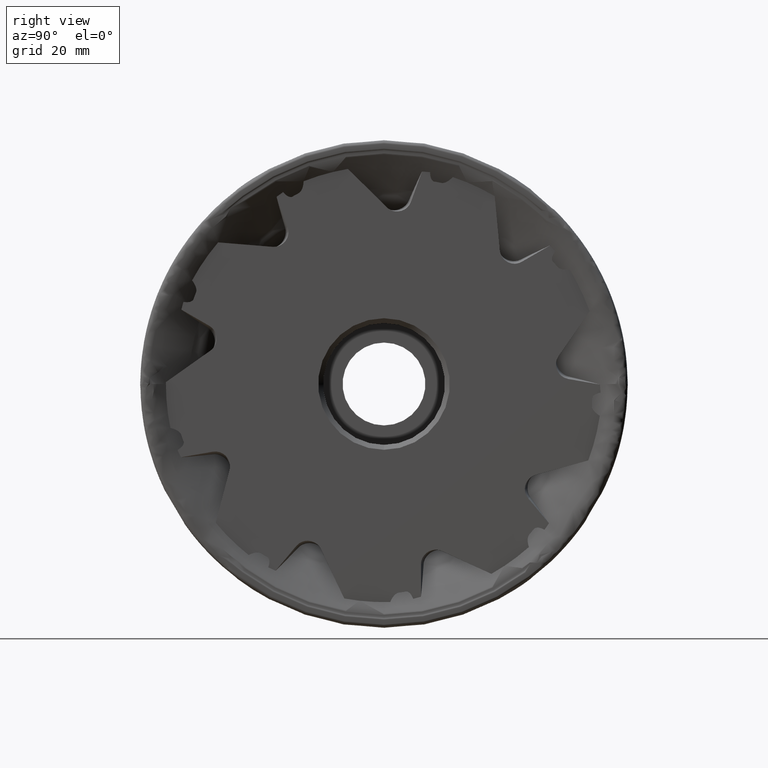
[diagram: clean part render]
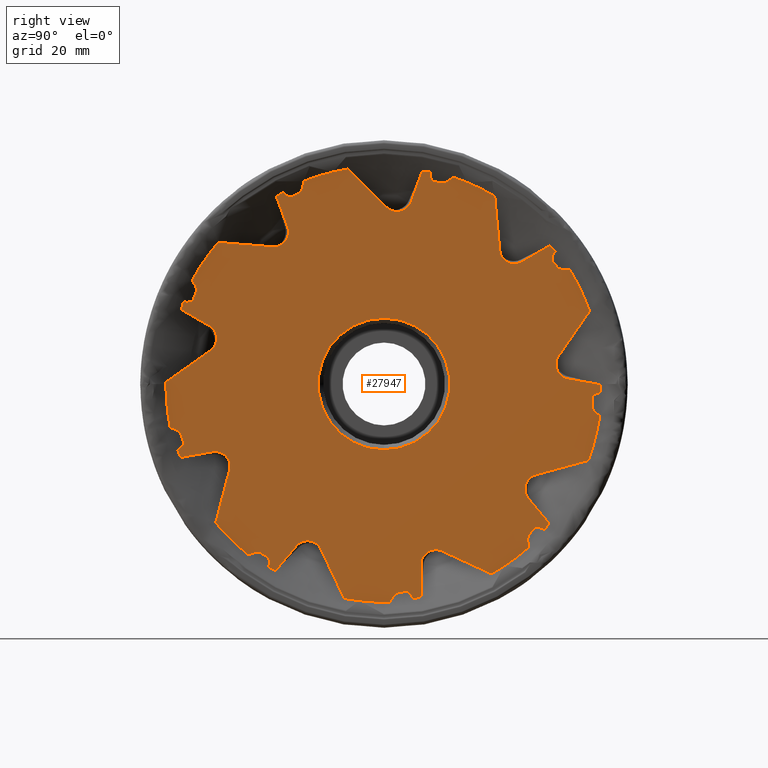
[diagram: same view with one face highlighted and labeled with its STEP entity id]
A machine part, right view. The second image highlights one B-rep face of the part: STEP entity #27947.
In plain terms, the highlighted planar face has unit normal (-1, 0, 0).
Its self-contained STEP definition (entity closure, byte-faithful):
#7 = ORIENTED_EDGE ( 'NONE', *, *, #22369, .F. ) ;
#101 = CARTESIAN_POINT ( 'NONE',  ( -0.5000000000000000000, 29.58925641689790700, -23.47173555906530900 ) ) ;
#102 = ORIENTED_EDGE ( 'NONE', *, *, #23277, .F. ) ;
#111 = CARTESIAN_POINT ( 'NONE',  ( -0.4999999999893449100, -39.36718985055523500, 21.26734490386622400 ) ) ;
#166 = ORIENTED_EDGE ( 'NONE', *, *, #27102, .F. ) ;
#174 = CARTESIAN_POINT ( 'NONE',  ( -0.5000000000000004400, -23.97150572284859700, -35.43166287729759700 ) ) ;
#319 = ORIENTED_EDGE ( 'NONE', *, *, #4123, .T. ) ;
#358 = VERTEX_POINT ( 'NONE', #27315 ) ;
#360 = CARTESIAN_POINT ( 'NONE',  ( -0.5000000000000000000, 43.16417240871292900, -2.120390557033617900 ) ) ;
#420 = EDGE_LOOP ( 'NONE', ( #22335, #16754, #20253, #19233, #12112, #2702, #9071, #11662, #24601, #19856, #27164, #20442, #23408, #3433, #19883, #10683, #24626, #23014, #25286, #8856, #6408, #17831, #11302, #1136, #20748, #677, #26560, #10052, #12272, #1690, #13908, #6385, #319, #7330, #9916, #13966, #4318, #26942, #166, #25768, #22955, #20591, #8021, #22971, #962, #15761, #12746, #11601, #27491, #25216, #4004, #6265, #6524, #20839, #22857, #26735, #6231, #18547, #12688, #21542, #13004, #102, #24852, #17792, #10626, #18775, #6638, #6462, #18810, #25735, #7, #14366, #4221, #3003, #3285, #16949, #3971, #15741, #28394, #3430, #8467, #27698, #27616, #13387, #26016, #23491, #19864, #15326, #23010, #25183, #23715, #25360, #13034, #4565, #3590, #3768, #11127, #14057, #20109, #2187, #19579, #23357, #16542, #16223 ) ) ;
#493 = CARTESIAN_POINT ( 'NONE',  ( -0.5000000000000004400, -39.45252706910576300, 17.00355092749155600 ) ) ;
#504 = LINE ( 'NONE', #19661, #3259 ) ;
#545 =( BOUNDED_CURVE ( )  B_SPLINE_CURVE ( 3, ( #12776, #23821, #17036, #8238 ),
 .UNSPECIFIED., .F., .F. ) 
 B_SPLINE_CURVE_WITH_KNOTS ( ( 4, 4 ),
 ( 3.012419020370851200, 3.332593767140632900 ),
 .UNSPECIFIED. ) 
 CURVE ( )  GEOMETRIC_REPRESENTATION_ITEM ( )  RATIONAL_B_SPLINE_CURVE ( ( 1.000000000000000000, 0.9914755729575720500, 0.9914755729575720500, 1.000000000000000000 ) ) 
 REPRESENTATION_ITEM ( '' )  );
#625 = VECTOR ( 'NONE', #23605, 1000.000000000000100 ) ;
#649 = LINE ( 'NONE', #11680, #19278 ) ;
#677 = ORIENTED_EDGE ( 'NONE', *, *, #20289, .F. ) ;
#714 = CARTESIAN_POINT ( 'NONE',  ( -0.5000000000000000000, 0.0000000000000000000, -13.50000000000001100 ) ) ;
#735 = VERTEX_POINT ( 'NONE', #17550 ) ;
#741 = CARTESIAN_POINT ( 'NONE',  ( -0.5000000000000000000, -26.66057323872512400, -34.50629014481866400 ) ) ;
#839 = CARTESIAN_POINT ( 'NONE',  ( -0.5000000000000000000, -25.16776837885325300, -34.72831584266487000 ) ) ;
#856 = CIRCLE ( 'NONE', #17886, 44.74455940097779200 ) ;
#864 = VERTEX_POINT ( 'NONE', #11340 ) ;
#905 = CARTESIAN_POINT ( 'NONE',  ( -0.5000000000000046600, 44.44113744580271000, -1.758973272405375000 ) ) ;
#937 = DIRECTION ( 'NONE',  ( 0.0000000000000000000, -0.6427876096865403600, 0.7660444431189770100 ) ) ;
#944 = EDGE_CURVE ( 'NONE', #8846, #13386, #13018, .T. ) ;
#962 = ORIENTED_EDGE ( 'NONE', *, *, #6803, .F. ) ;
#1066 = CARTESIAN_POINT ( 'NONE',  ( -0.5000000000000000000, -41.60256024127179600, -10.42590369276656000 ) ) ;
#1108 = EDGE_CURVE ( 'NONE', #9396, #14929, #12928, .T. ) ;
#1114 = DIRECTION ( 'NONE',  ( 0.0000000000000000000, -0.09355528973150852000, 0.9956140857597654000 ) ) ;
#1136 = ORIENTED_EDGE ( 'NONE', *, *, #17057, .F. ) ;
#1160 = VERTEX_POINT ( 'NONE', #23816 ) ;
#1225 = VECTOR ( 'NONE', #14175, 1000.000000000000000 ) ;
#1246 = VERTEX_POINT ( 'NONE', #8922 ) ;
#1257 = CARTESIAN_POINT ( 'NONE',  ( -0.4999999999999735800, 1.648735324820775400, 35.58195368176298200 ) ) ;
#1335 = CARTESIAN_POINT ( 'NONE',  ( -0.5000000000000000000, -19.77699954948752700, 32.17633842249912800 ) ) ;
#1365 =( BOUNDED_CURVE ( )  B_SPLINE_CURVE ( 3, ( #27463, #16532, #25170, #9477 ),
 .UNSPECIFIED., .F., .T. ) 
 B_SPLINE_CURVE_WITH_KNOTS ( ( 4, 4 ),
 ( 2.168404344971004900E-016, 1.570796326794894300 ),
 .UNSPECIFIED. ) 
 CURVE ( )  GEOMETRIC_REPRESENTATION_ITEM ( )  RATIONAL_B_SPLINE_CURVE ( ( 1.000000000000000000, 0.8047378541243654900, 0.8047378541243654900, 1.000000000000000000 ) ) 
 REPRESENTATION_ITEM ( '' )  );
#1376 = CARTESIAN_POINT ( 'NONE',  ( -0.4999999999999972800, -20.69725318442063900, 39.36664063734364300 ) ) ;
#1406 = CARTESIAN_POINT ( 'NONE',  ( -0.5000000000000003300, -23.64951165908783500, -35.68016236801374700 ) ) ;
#1449 = VERTEX_POINT ( 'NONE', #18246 ) ;
#1493 = CARTESIAN_POINT ( 'NONE',  ( -0.5000000000000000000, 13.25089763738516700, 41.54375930003711700 ) ) ;
#1508 = LINE ( 'NONE', #24162, #9079 ) ;
#1588 = CARTESIAN_POINT ( 'NONE',  ( -0.5000000000000004400, 4.818189292840928700, -42.53420318119886900 ) ) ;
#1608 = VERTEX_POINT ( 'NONE', #6239 ) ;
#1616 = CARTESIAN_POINT ( 'NONE',  ( -0.4999999999999995600, 11.06629524200903900, -34.00000000000000000 ) ) ;
#1629 = CARTESIAN_POINT ( 'NONE',  ( -0.4999999999999996100, -15.08370592729556800, -31.72711575691708300 ) ) ;
#1642 = CARTESIAN_POINT ( 'NONE',  ( -0.5000000000000004400, -8.149818227263651200, -43.99609140423914500 ) ) ;
#1670 = CARTESIAN_POINT ( 'NONE',  ( -0.5000000000000006700, 11.90566310921146400, -34.28107663889005600 ) ) ;
#1690 = ORIENTED_EDGE ( 'NONE', *, *, #2530, .F. ) ;
#1694 = CARTESIAN_POINT ( 'NONE',  ( -0.4999999999999996100, 35.01834119794753500, 2.800685362206364100 ) ) ;
#1695 = AXIS2_PLACEMENT_3D ( 'NONE', #4488, #1877, #8797 ) ;
#1794 = CARTESIAN_POINT ( 'NONE',  ( -0.5000000000000000000, 37.75402624939334100, 1.039214809239864500 ) ) ;
#1846 = CARTESIAN_POINT ( 'NONE',  ( -0.5000000000000008900, -41.13827264030037900, -11.73364159344168000 ) ) ;
#1847 = EDGE_CURVE ( 'NONE', #5583, #14179, #4241, .T. ) ;
#1849 = VECTOR ( 'NONE', #10010, 999.9999999999998900 ) ;
#1854 = CARTESIAN_POINT ( 'NONE',  ( -0.4999999999998443500, 1.745740669420998300E-015, 0.0000000000000000000 ) ) ;
#1877 = DIRECTION ( 'NONE',  ( -1.000000000000000000, 3.491481338843133000E-015, 0.0000000000000000000 ) ) ;
#1886 = CARTESIAN_POINT ( 'NONE',  ( -0.5000000000000002200, 31.15571837665129400, -18.60801553165424600 ) ) ;
#1938 = CARTESIAN_POINT ( 'NONE',  ( -0.4999999999999900100, -31.63924346709828200, -16.36313016547003900 ) ) ;
#1960 =( BOUNDED_CURVE ( )  B_SPLINE_CURVE ( 3, ( #11750, #20643, #13888, #16032 ),
 .UNSPECIFIED., .F., .F. ) 
 B_SPLINE_CURVE_WITH_KNOTS ( ( 4, 4 ),
 ( 2.365165096739790600, 2.969697752635072100 ),
 .UNSPECIFIED. ) 
 CURVE ( )  GEOMETRIC_REPRESENTATION_ITEM ( )  RATIONAL_B_SPLINE_CURVE ( ( 1.000000000000000000, 0.9697761937177743500, 0.9697761937177743500, 1.000000000000000000 ) ) 
 REPRESENTATION_ITEM ( '' )  );
#1975 =( BOUNDED_CURVE ( )  B_SPLINE_CURVE ( 3, ( #22469, #4702, #360, #16059 ),
 .UNSPECIFIED., .F., .T. ) 
 B_SPLINE_CURVE_WITH_KNOTS ( ( 4, 4 ),
 ( 2.365165096739790100, 2.969697752635067600 ),
 .UNSPECIFIED. ) 
 CURVE ( )  GEOMETRIC_REPRESENTATION_ITEM ( )  RATIONAL_B_SPLINE_CURVE ( ( 1.000000000000000000, 0.9697761937177746800, 0.9697761937177746800, 1.000000000000000000 ) ) 
 REPRESENTATION_ITEM ( '' )  );
#2130 =( BOUNDED_CURVE ( )  B_SPLINE_CURVE ( 3, ( #13305, #19762, #10686, #26080 ),
 .UNSPECIFIED., .F., .F. ) 
 B_SPLINE_CURVE_WITH_KNOTS ( ( 4, 4 ),
 ( 2.365165096739766200, 2.969697752635068500 ),
 .UNSPECIFIED. ) 
 CURVE ( )  GEOMETRIC_REPRESENTATION_ITEM ( )  RATIONAL_B_SPLINE_CURVE ( ( 1.000000000000000000, 0.9697761937177722400, 0.9697761937177722400, 1.000000000000000000 ) ) 
 REPRESENTATION_ITEM ( '' )  );
#2187 = ORIENTED_EDGE ( 'NONE', *, *, #2638, .T. ) ;
#2198 = CARTESIAN_POINT ( 'NONE',  ( -0.5000000000000006700, -22.91248251468065800, 28.14169814716137500 ) ) ;
#2205 = CARTESIAN_POINT ( 'NONE',  ( -0.4999999999999997800, 35.82766675841556000, 5.771942847899354400 ) ) ;
#2238 = EDGE_CURVE ( 'NONE', #21461, #26850, #3578, .T. ) ;
#2269 = LINE ( 'NONE', #25201, #17785 ) ;
#2270 = CIRCLE ( 'NONE', #23737, 44.74455940097779200 ) ;
#2289 = VERTEX_POINT ( 'NONE', #11144 ) ;
#2300 = LINE ( 'NONE', #2543, #18843 ) ;
#2332 = CARTESIAN_POINT ( 'NONE',  ( -0.5000000000000000000, 3.043302016619140900, -42.78096304754177500 ) ) ;
#2375 = VERTEX_POINT ( 'NONE', #24439 ) ;
#2446 = DIRECTION ( 'NONE',  ( 0.0000000000000000000, 0.2526068569124145200, 0.9675690031418073800 ) ) ;
#2454 = VERTEX_POINT ( 'NONE', #18241 ) ;
#2480 = VERTEX_POINT ( 'NONE', #19576 ) ;
#2482 = EDGE_CURVE ( 'NONE', #9409, #4960, #7568, .T. ) ;
#2530 = EDGE_CURVE ( 'NONE', #3491, #12830, #2130, .T. ) ;
#2543 = CARTESIAN_POINT ( 'NONE',  ( -0.5000000000000000000, -39.08401565306051100, -17.84663915461375100 ) ) ;
#2557 = VECTOR ( 'NONE', #5060, 1000.000000000000200 ) ;
#2569 = CARTESIAN_POINT ( 'NONE',  ( -0.5000000000000001100, 42.64494276628744300, -5.096686051221202400 ) ) ;
#2573 = EDGE_CURVE ( 'NONE', #22103, #18950, #1508, .T. ) ;
#2580 = VERTEX_POINT ( 'NONE', #101 ) ;
#2605 = LINE ( 'NONE', #10923, #7045 ) ;
#2637 = CARTESIAN_POINT ( 'NONE',  ( -0.5000000000000000000, 35.52774978922484200, 24.02605838155163900 ) ) ;
#2638 = EDGE_CURVE ( 'NONE', #11156, #7890, #8720, .T. ) ;
#2702 = ORIENTED_EDGE ( 'NONE', *, *, #1847, .F. ) ;
#2755 = CARTESIAN_POINT ( 'NONE',  ( -0.5000000000000000000, -21.19390527863771500, -16.39771588095142000 ) ) ;
#2777 = CARTESIAN_POINT ( 'NONE',  ( -0.4999999999999995600, 24.69463342276219500, 25.22764023748726800 ) ) ;
#2802 = EDGE_CURVE ( 'NONE', #13386, #8846, #3545, .T. ) ;
#2923 = CARTESIAN_POINT ( 'NONE',  ( -0.5000000000000003300, 34.45177059230314100, 25.66511522159289900 ) ) ;
#2928 = VERTEX_POINT ( 'NONE', #5196 ) ;
#2932 = VECTOR ( 'NONE', #4880, 1000.000000000000100 ) ;
#2939 = LINE ( 'NONE', #27574, #25664 ) ;
#3003 = ORIENTED_EDGE ( 'NONE', *, *, #21830, .F. ) ;
#3013 = EDGE_CURVE ( 'NONE', #5583, #21831, #6967, .T. ) ;
#3015 = VECTOR ( 'NONE', #20500, 1000.000000000000200 ) ;
#3047 = DIRECTION ( 'NONE',  ( 0.0000000000000000000, 0.4284332877048025500, -0.9035734159361119600 ) ) ;
#3061 = VERTEX_POINT ( 'NONE', #16585 ) ;
#3095 = CARTESIAN_POINT ( 'NONE',  ( -0.5000000000000000000, 37.80624952067264400, 24.62065041062805200 ) ) ;
#3121 = AXIS2_PLACEMENT_3D ( 'NONE', #13830, #14197, #20760 ) ;
#3132 = EDGE_CURVE ( 'NONE', #13396, #28227, #6322, .T. ) ;
#3161 = CARTESIAN_POINT ( 'NONE',  ( -0.5000000000000003300, 42.72468285139730400, -2.640996699859845500 ) ) ;
#3236 = AXIS2_PLACEMENT_3D ( 'NONE', #24283, #7011, #24650 ) ;
#3259 = VECTOR ( 'NONE', #6425, 1000.000000000000200 ) ;
#3277 = VERTEX_POINT ( 'NONE', #21269 ) ;
#3285 = ORIENTED_EDGE ( 'NONE', *, *, #3897, .T. ) ;
#3312 = VERTEX_POINT ( 'NONE', #8162 ) ;
#3426 = LINE ( 'NONE', #26390, #8587 ) ;
#3430 = ORIENTED_EDGE ( 'NONE', *, *, #25230, .F. ) ;
#3433 = ORIENTED_EDGE ( 'NONE', *, *, #28054, .F. ) ;
#3437 = CARTESIAN_POINT ( 'NONE',  ( -0.4999999999996896900, 44.26691815580011300, -6.520395154844322900 ) ) ;
#3450 = CIRCLE ( 'NONE', #1695, 44.74455940097779200 ) ;
#3491 = VERTEX_POINT ( 'NONE', #13486 ) ;
#3500 = CARTESIAN_POINT ( 'NONE',  ( -0.5000000000000000000, -38.57105180584425600, 18.75490466598994400 ) ) ;
#3545 = CIRCLE ( 'NONE', #3236, 13.50000000000001100 ) ;
#3554 = VECTOR ( 'NONE', #14435, 1000.000000000000100 ) ;
#3578 = LINE ( 'NONE', #19656, #13236 ) ;
#3590 = ORIENTED_EDGE ( 'NONE', *, *, #26530, .F. ) ;
#3604 = CARTESIAN_POINT ( 'NONE',  ( -0.5000000000000004400, 5.000756476802365600, -42.66866614908465000 ) ) ;
#3636 = EDGE_CURVE ( 'NONE', #3491, #8876, #7306, .T. ) ;
#3637 = CARTESIAN_POINT ( 'NONE',  ( -0.4999999999999980600, -27.78028692470631400, -35.07607809274878000 ) ) ;
#3665 =( BOUNDED_CURVE ( )  B_SPLINE_CURVE ( 3, ( #839, #22860, #741, #22580 ),
 .UNSPECIFIED., .F., .F. ) 
 B_SPLINE_CURVE_WITH_KNOTS ( ( 4, 4 ),
 ( 3.253571808752294000, 4.092388881214473500 ),
 .UNSPECIFIED. ) 
 CURVE ( )  GEOMETRIC_REPRESENTATION_ITEM ( )  RATIONAL_B_SPLINE_CURVE ( ( 1.000000000000000000, 0.9422199707466379900, 0.9422199707466379900, 1.000000000000000000 ) ) 
 REPRESENTATION_ITEM ( '' )  );
#3709 = VECTOR ( 'NONE', #26311, 1000.000000000000100 ) ;
#3718 = VECTOR ( 'NONE', #19438, 1000.000000000000200 ) ;
#3754 = CARTESIAN_POINT ( 'NONE',  ( -0.5000000000000000000, 29.35250210384537100, -32.24749362694276300 ) ) ;
#3767 = VECTOR ( 'NONE', #5638, 1000.000000000000200 ) ;
#3768 = ORIENTED_EDGE ( 'NONE', *, *, #11730, .F. ) ;
#3770 =( BOUNDED_CURVE ( )  B_SPLINE_CURVE ( 3, ( #3500, #25547, #23128, #9850 ),
 .UNSPECIFIED., .F., .F. ) 
 B_SPLINE_CURVE_WITH_KNOTS ( ( 4, 4 ),
 ( 3.253571808752292700, 4.092388881220347900 ),
 .UNSPECIFIED. ) 
 CURVE ( )  GEOMETRIC_REPRESENTATION_ITEM ( )  RATIONAL_B_SPLINE_CURVE ( ( 1.000000000000000000, 0.9422199707458404100, 0.9422199707458404100, 1.000000000000000000 ) ) 
 REPRESENTATION_ITEM ( '' )  );
#3817 = CARTESIAN_POINT ( 'NONE',  ( -0.4999999999999995600, 10.62044047968053600, -34.00000000000000000 ) ) ;
#3818 = VERTEX_POINT ( 'NONE', #5021 ) ;
#3826 = CARTESIAN_POINT ( 'NONE',  ( -0.4999999999999995600, -19.59837760108303700, 31.16250108552832600 ) ) ;
#3856 =( BOUNDED_CURVE ( )  B_SPLINE_CURVE ( 3, ( #15176, #25829, #17018, #12568 ),
 .UNSPECIFIED., .F., .F. ) 
 B_SPLINE_CURVE_WITH_KNOTS ( ( 4, 4 ),
 ( 0.0000000000000000000, 0.5177274942527081400 ),
 .UNSPECIFIED. ) 
 CURVE ( )  GEOMETRIC_REPRESENTATION_ITEM ( )  RATIONAL_B_SPLINE_CURVE ( ( 1.000000000000000000, 0.9777876418324865600, 0.9777876418324865600, 1.000000000000000000 ) ) 
 REPRESENTATION_ITEM ( '' )  );
#3859 = CARTESIAN_POINT ( 'NONE',  ( -0.4999999999999995600, -22.02760085142706000, 28.16465322196462000 ) ) ;
#3895 = VERTEX_POINT ( 'NONE', #24952 ) ;
#3897 = EDGE_CURVE ( 'NONE', #19493, #20567, #18741, .T. ) ;
#3906 = CARTESIAN_POINT ( 'NONE',  ( -0.5000000000000000000, 1.653273178848928200E-015, 13.50000000000001100 ) ) ;
#3924 = CARTESIAN_POINT ( 'NONE',  ( -0.5000000000000000000, 14.40906457824651800, 5.155561415467952100 ) ) ;
#3971 = ORIENTED_EDGE ( 'NONE', *, *, #18166, .T. ) ;
#3986 = VERTEX_POINT ( 'NONE', #14538 ) ;
#4004 = ORIENTED_EDGE ( 'NONE', *, *, #2482, .F. ) ;
#4019 = VERTEX_POINT ( 'NONE', #16559 ) ;
#4024 = VERTEX_POINT ( 'NONE', #7667 ) ;
#4029 = CARTESIAN_POINT ( 'NONE',  ( -0.4999999999999995600, 25.65961731596631500, 24.66669714934730400 ) ) ;
#4122 = LINE ( 'NONE', #28225, #11690 ) ;
#4123 = EDGE_CURVE ( 'NONE', #26089, #21927, #28211, .T. ) ;
#4132 = EDGE_CURVE ( 'NONE', #7890, #2289, #19249, .T. ) ;
#4174 = VECTOR ( 'NONE', #5049, 1000.000000000000100 ) ;
#4191 = DIRECTION ( 'NONE',  ( 3.491676645088320300E-015, 1.000000000000000000, 0.0000000000000000000 ) ) ;
#4215 = VERTEX_POINT ( 'NONE', #28371 ) ;
#4221 = ORIENTED_EDGE ( 'NONE', *, *, #22695, .F. ) ;
#4241 =( BOUNDED_CURVE ( )  B_SPLINE_CURVE ( 3, ( #20148, #13578, #24551, #493 ),
 .UNSPECIFIED., .F., .F. ) 
 B_SPLINE_CURVE_WITH_KNOTS ( ( 4, 4 ),
 ( 2.365165096739788800, 2.969697752635080500 ),
 .UNSPECIFIED. ) 
 CURVE ( )  GEOMETRIC_REPRESENTATION_ITEM ( )  RATIONAL_B_SPLINE_CURVE ( ( 1.000000000000000000, 0.9697761937177731300, 0.9697761937177731300, 1.000000000000000000 ) ) 
 REPRESENTATION_ITEM ( '' )  );
#4293 = EDGE_CURVE ( 'NONE', #1608, #21927, #7370, .T. ) ;
#4318 = ORIENTED_EDGE ( 'NONE', *, *, #19225, .F. ) ;
#4424 = LINE ( 'NONE', #17367, #25732 ) ;
#4441 = CARTESIAN_POINT ( 'NONE',  ( -0.4999999999999995600, -20.36105037100636400, 28.77122799073980300 ) ) ;
#4488 = CARTESIAN_POINT ( 'NONE',  ( -0.4999999999998443500, 1.745740669420998300E-015, 0.0000000000000000000 ) ) ;
#4541 = CARTESIAN_POINT ( 'NONE',  ( -0.5000000000000000000, 1.757031781445397700, -43.57043796308291700 ) ) ;
#4565 = ORIENTED_EDGE ( 'NONE', *, *, #7504, .F. ) ;
#4584 = LINE ( 'NONE', #22122, #12833 ) ;
#4692 = LINE ( 'NONE', #22393, #27725 ) ;
#4702 = CARTESIAN_POINT ( 'NONE',  ( -0.5000000000000000000, 43.69774292817842100, -1.870993117610307600 ) ) ;
#4770 = CARTESIAN_POINT ( 'NONE',  ( -0.4999999999999995600, 23.91171610766628000, 26.58369280535881200 ) ) ;
#4819 = CARTESIAN_POINT ( 'NONE',  ( -0.5000000000000000000, 38.00643353360744200, -21.49395264162656700 ) ) ;
#4858 = VERTEX_POINT ( 'NONE', #2198 ) ;
#4867 = EDGE_CURVE ( 'NONE', #4215, #13692, #10377, .T. ) ;
#4880 = DIRECTION ( 'NONE',  ( 0.0000000000000000000, -0.9090047354993348000, 0.4167857853139720300 ) ) ;
#4960 = VERTEX_POINT ( 'NONE', #20932 ) ;
#5021 = CARTESIAN_POINT ( 'NONE',  ( -0.4999999999999839600, 34.76370839336900100, 24.97814161748649700 ) ) ;
#5049 = DIRECTION ( 'NONE',  ( 0.0000000000000000000, -0.4273148791096514400, 0.9041028669855570900 ) ) ;
#5060 = DIRECTION ( 'NONE',  ( 0.0000000000000000000, 0.8154494457678170800, 0.5788283004457884800 ) ) ;
#5196 = CARTESIAN_POINT ( 'NONE',  ( -0.5000000000000001100, 22.03701946385559700, -38.94156351685479200 ) ) ;
#5203 = CARTESIAN_POINT ( 'NONE',  ( -0.5000000000000022200, 34.64418945244828100, 25.09613432490953500 ) ) ;
#5267 = LINE ( 'NONE', #15679, #11803 ) ;
#5276 = DIRECTION ( 'NONE',  ( -1.000000000000000000, 3.491481338843133000E-015, 0.0000000000000000000 ) ) ;
#5308 = VERTEX_POINT ( 'NONE', #6914 ) ;
#5381 = CARTESIAN_POINT ( 'NONE',  ( -0.5000000000000000000, -16.90861178767296400, 39.47994680414865300 ) ) ;
#5449 = CARTESIAN_POINT ( 'NONE',  ( -0.4999999999999991700, 10.40750462132815300, 41.49360997103126900 ) ) ;
#5470 = VERTEX_POINT ( 'NONE', #13960 ) ;
#5581 = CARTESIAN_POINT ( 'NONE',  ( -0.5000000000000000000, -41.81630732504211800, -9.796111164246253700 ) ) ;
#5583 = VERTEX_POINT ( 'NONE', #6726 ) ;
#5591 = DIRECTION ( 'NONE',  ( 0.0000000000000000000, 0.9642427650914010600, 0.2650205463146002600 ) ) ;
#5610 = CARTESIAN_POINT ( 'NONE',  ( -0.5000000000000001100, 5.984872014903022100, -44.07141921262572700 ) ) ;
#5614 = EDGE_CURVE ( 'NONE', #1246, #4019, #11196, .T. ) ;
#5638 = DIRECTION ( 'NONE',  ( 0.0000000000000000000, -0.5683008885325595600, -0.8228208189472986400 ) ) ;
#5684 = VERTEX_POINT ( 'NONE', #28501 ) ;
#5768 = LINE ( 'NONE', #21899, #3709 ) ;
#5806 = AXIS2_PLACEMENT_3D ( 'NONE', #19321, #5824, #21330 ) ;
#5824 = DIRECTION ( 'NONE',  ( -1.000000000000000000, 3.491481338843133000E-015, 0.0000000000000000000 ) ) ;
#5866 = EDGE_CURVE ( 'NONE', #864, #25600, #10706, .T. ) ;
#5909 = AXIS2_PLACEMENT_3D ( 'NONE', #13666, #20507, #9513 ) ;
#5918 = VERTEX_POINT ( 'NONE', #14804 ) ;
#5955 =( BOUNDED_CURVE ( )  B_SPLINE_CURVE ( 3, ( #25273, #7841, #1493, #27569 ),
 .UNSPECIFIED., .F., .F. ) 
 B_SPLINE_CURVE_WITH_KNOTS ( ( 4, 4 ),
 ( 3.253571808752291300, 4.092388881214795000 ),
 .UNSPECIFIED. ) 
 CURVE ( )  GEOMETRIC_REPRESENTATION_ITEM ( )  RATIONAL_B_SPLINE_CURVE ( ( 1.000000000000000000, 0.9422199707465939200, 0.9422199707465939200, 1.000000000000000000 ) ) 
 REPRESENTATION_ITEM ( '' )  );
#6005 = DIRECTION ( 'NONE',  ( -0.0000000000000000000, -0.9883698850675954900, -0.1520689655763726700 ) ) ;
#6009 = CARTESIAN_POINT ( 'NONE',  ( -0.5000000000000004400, -41.09500557120505700, -11.82489261090916500 ) ) ;
#6015 = EDGE_CURVE ( 'NONE', #2375, #1449, #18749, .T. ) ;
#6116 = EDGE_CURVE ( 'NONE', #18907, #27985, #16667, .T. ) ;
#6129 = CARTESIAN_POINT ( 'NONE',  ( -0.4999999999999900100, -31.63924346709828200, -16.36313016547003900 ) ) ;
#6194 = EDGE_CURVE ( 'NONE', #26359, #1608, #16214, .T. ) ;
#6201 = CARTESIAN_POINT ( 'NONE',  ( -0.5000000000000004400, 5.000756476802365600, -42.66866614908465000 ) ) ;
#6231 = ORIENTED_EDGE ( 'NONE', *, *, #2238, .F. ) ;
#6239 = CARTESIAN_POINT ( 'NONE',  ( -0.5000000000000006700, -12.91518424373473400, -33.91364099506095900 ) ) ;
#6247 = FACE_OUTER_BOUND ( 'NONE', #420, .T. ) ;
#6265 = ORIENTED_EDGE ( 'NONE', *, *, #27973, .F. ) ;
#6322 = LINE ( 'NONE', #22604, #19071 ) ;
#6325 = EDGE_CURVE ( 'NONE', #24706, #12630, #3770, .T. ) ;
#6385 = ORIENTED_EDGE ( 'NONE', *, *, #24632, .T. ) ;
#6408 = ORIENTED_EDGE ( 'NONE', *, *, #2573, .T. ) ;
#6413 = EDGE_CURVE ( 'NONE', #5684, #19544, #25943, .T. ) ;
#6415 = CARTESIAN_POINT ( 'NONE',  ( -0.4999999999999995600, -19.59837760108303700, 31.16250108552832600 ) ) ;
#6425 = DIRECTION ( 'NONE',  ( 0.0000000000000000000, 0.9967341762373569400, -0.08075259698881136200 ) ) ;
#6437 = DIRECTION ( 'NONE',  ( 0.0000000000000000000, 0.9848077530122062400, 0.1736481776669404600 ) ) ;
#6451 = CARTESIAN_POINT ( 'NONE',  ( -0.4999999999999996100, 3.322734475493660100, 34.97266781873115300 ) ) ;
#6462 = ORIENTED_EDGE ( 'NONE', *, *, #9579, .F. ) ;
#6524 = ORIENTED_EDGE ( 'NONE', *, *, #23109, .T. ) ;
#6638 = ORIENTED_EDGE ( 'NONE', *, *, #6015, .F. ) ;
#6677 = ORIENTED_EDGE ( 'NONE', *, *, #2802, .F. ) ;
#6703 = CARTESIAN_POINT ( 'NONE',  ( -0.5000000000000316400, 29.99050814227750500, -19.21882351629319500 ) ) ;
#6726 = CARTESIAN_POINT ( 'NONE',  ( -0.5000000000000075500, -41.15940462641912500, 16.85265840300790100 ) ) ;
#6783 = CARTESIAN_POINT ( 'NONE',  ( -0.5000000000000001100, 43.21361047513282500, -5.835588631783569900 ) ) ;
#6784 = VECTOR ( 'NONE', #27874, 1000.000000000000000 ) ;
#6803 = EDGE_CURVE ( 'NONE', #13863, #13692, #28074, .T. ) ;
#6841 = EDGE_CURVE ( 'NONE', #3061, #3895, #24473, .T. ) ;
#6914 = CARTESIAN_POINT ( 'NONE',  ( -0.5000000000000000000, 28.25326761053361600, 25.06390501871560200 ) ) ;
#6967 = LINE ( 'NONE', #25219, #1849 ) ;
#7011 = DIRECTION ( 'NONE',  ( 1.000000000000000000, -0.0000000000000000000, -0.0000000000000000000 ) ) ;
#7025 = EDGE_CURVE ( 'NONE', #24038, #26359, #3450, .T. ) ;
#7045 = VECTOR ( 'NONE', #15565, 1000.000000000000000 ) ;
#7218 = VERTEX_POINT ( 'NONE', #905 ) ;
#7222 = CARTESIAN_POINT ( 'NONE',  ( -0.5000000000000004400, 34.49201299789820800, 25.24636751590066200 ) ) ;
#7306 = LINE ( 'NONE', #19234, #3554 ) ;
#7330 = ORIENTED_EDGE ( 'NONE', *, *, #4293, .F. ) ;
#7362 = CARTESIAN_POINT ( 'NONE',  ( -0.5000000000000004400, -41.07322814178710500, -12.01555486981145100 ) ) ;
#7370 =( BOUNDED_CURVE ( )  B_SPLINE_CURVE ( 3, ( #15406, #8845, #28175, #19734 ),
 .UNSPECIFIED., .F., .F. ) 
 B_SPLINE_CURVE_WITH_KNOTS ( ( 4, 4 ),
 ( 4.276056667386110500, 4.712388980384691500 ),
 .UNSPECIFIED. ) 
 CURVE ( )  GEOMETRIC_REPRESENTATION_ITEM ( )  RATIONAL_B_SPLINE_CURVE ( ( 1.000000000000000000, 0.9841973380799556900, 0.9841973380799556900, 1.000000000000000000 ) ) 
 REPRESENTATION_ITEM ( '' )  );
#7376 = CARTESIAN_POINT ( 'NONE',  ( -0.4999999999999735800, 1.648735324820775400, 35.58195368176298200 ) ) ;
#7381 = VECTOR ( 'NONE', #19322, 1000.000000000000100 ) ;
#7391 = VERTEX_POINT ( 'NONE', #7921 ) ;
#7438 = CARTESIAN_POINT ( 'NONE',  ( -0.5000000000000004400, -19.29271727142384300, 38.38507127213947000 ) ) ;
#7452 = CARTESIAN_POINT ( 'NONE',  ( -0.5000000000000000000, 9.430601955691161100, 42.70898147950413900 ) ) ;
#7463 = CARTESIAN_POINT ( 'NONE',  ( -0.4999999999999954500, 41.91249083364684200, -15.66584527266385200 ) ) ;
#7496 = LINE ( 'NONE', #8504, #625 ) ;
#7504 = EDGE_CURVE ( 'NONE', #21995, #24204, #4122, .T. ) ;
#7544 = CARTESIAN_POINT ( 'NONE',  ( -0.5000000000000000000, 9.583556939254652500, 42.14020968428510400 ) ) ;
#7568 =( BOUNDED_CURVE ( )  B_SPLINE_CURVE ( 3, ( #23869, #15142, #19955, #15232 ),
 .UNSPECIFIED., .F., .F. ) 
 B_SPLINE_CURVE_WITH_KNOTS ( ( 4, 4 ),
 ( 2.849182867950076100, 3.332593767140636000 ),
 .UNSPECIFIED. ) 
 CURVE ( )  GEOMETRIC_REPRESENTATION_ITEM ( )  RATIONAL_B_SPLINE_CURVE ( ( 1.000000000000000000, 0.9806207817361842800, 0.9806207817361842800, 1.000000000000000000 ) ) 
 REPRESENTATION_ITEM ( '' )  );
#7599 = EDGE_CURVE ( 'NONE', #22075, #12481, #3426, .T. ) ;
#7648 = CARTESIAN_POINT ( 'NONE',  ( -0.5000000000000054400, 32.91324016097191000, -29.91366421145946900 ) ) ;
#7667 = CARTESIAN_POINT ( 'NONE',  ( -0.5000000000000004400, 42.88880548346095600, -2.484552370986065700 ) ) ;
#7702 =( BOUNDED_CURVE ( )  B_SPLINE_CURVE ( 3, ( #14385, #1588, #12267, #19217 ),
 .UNSPECIFIED., .F., .F. ) 
 B_SPLINE_CURVE_WITH_KNOTS ( ( 4, 4 ),
 ( 2.849182867950072100, 3.332593767140637400 ),
 .UNSPECIFIED. ) 
 CURVE ( )  GEOMETRIC_REPRESENTATION_ITEM ( )  RATIONAL_B_SPLINE_CURVE ( ( 1.000000000000000000, 0.9806207817361838300, 0.9806207817361838300, 1.000000000000000000 ) ) 
 REPRESENTATION_ITEM ( '' )  );
#7814 = CARTESIAN_POINT ( 'NONE',  ( -0.4999999999999800700, -39.01355937675322800, 17.61718378966841300 ) ) ;
#7827 = CARTESIAN_POINT ( 'NONE',  ( -0.5000000000000000000, 5.745464899580933400, -43.35877057010491600 ) ) ;
#7841 = CARTESIAN_POINT ( 'NONE',  ( -0.5000000000000000000, 12.42447253598786000, 41.11204001806681400 ) ) ;
#7890 = VERTEX_POINT ( 'NONE', #25517 ) ;
#7899 = EDGE_CURVE ( 'NONE', #13589, #8309, #8154, .T. ) ;
#7921 = CARTESIAN_POINT ( 'NONE',  ( -0.4999999999999779100, -41.21022782442350500, -11.58188683166590700 ) ) ;
#8021 = ORIENTED_EDGE ( 'NONE', *, *, #10851, .T. ) ;
#8033 = CARTESIAN_POINT ( 'NONE',  ( -0.5000000000000000000, 25.22768214951504000, 11.85001479931456100 ) ) ;
#8133 = CARTESIAN_POINT ( 'NONE',  ( -0.5000000000000004400, -39.11000212099738600, 17.24777572589239600 ) ) ;
#8154 =( BOUNDED_CURVE ( )  B_SPLINE_CURVE ( 3, ( #14635, #16887, #18903, #1257 ),
 .UNSPECIFIED., .F., .F. ) 
 B_SPLINE_CURVE_WITH_KNOTS ( ( 4, 4 ),
 ( 4.276056667386109600, 4.712388980384691500 ),
 .UNSPECIFIED. ) 
 CURVE ( )  GEOMETRIC_REPRESENTATION_ITEM ( )  RATIONAL_B_SPLINE_CURVE ( ( 1.000000000000000000, 0.9841973380799556900, 0.9841973380799556900, 1.000000000000000000 ) ) 
 REPRESENTATION_ITEM ( '' )  );
#8162 = CARTESIAN_POINT ( 'NONE',  ( -0.4999999999999796300, 10.57490569223279700, 41.48004760752799300 ) ) ;
#8189 = EDGE_CURVE ( 'NONE', #21978, #11156, #18910, .T. ) ;
#8224 = EDGE_CURVE ( 'NONE', #27985, #21461, #12326, .T. ) ;
#8238 = CARTESIAN_POINT ( 'NONE',  ( -0.4999999999999985000, -18.69896728864128800, 38.47576436159982900 ) ) ;
#8239 = CARTESIAN_POINT ( 'NONE',  ( -0.4999999999999993300, 22.70587353675353600, 38.55540043781858400 ) ) ;
#8260 = CARTESIAN_POINT ( 'NONE',  ( -0.4999999999997405400, 29.71919745145812200, -33.44913898486571200 ) ) ;
#8309 = VERTEX_POINT ( 'NONE', #7376 ) ;
#8403 = LINE ( 'NONE', #11508, #2557 ) ;
#8413 = CARTESIAN_POINT ( 'NONE',  ( -0.4999999999999483700, -34.75508396851125100, 7.802428745215753000 ) ) ;
#8420 = CARTESIAN_POINT ( 'NONE',  ( -0.4999999999999813500, -24.12417267238013400, -35.36166388612947700 ) ) ;
#8467 = ORIENTED_EDGE ( 'NONE', *, *, #14007, .F. ) ;
#8481 = VECTOR ( 'NONE', #18059, 1000.000000000000100 ) ;
#8487 = CARTESIAN_POINT ( 'NONE',  ( -0.5000000000000032200, -39.05598458838250800, 17.45468099688616400 ) ) ;
#8496 = EDGE_CURVE ( 'NONE', #2454, #9012, #9558, .T. ) ;
#8504 = CARTESIAN_POINT ( 'NONE',  ( -0.5000000000000000000, 0.2061711173234424000, -28.89923762361805300 ) ) ;
#8557 = CARTESIAN_POINT ( 'NONE',  ( -0.5000000000000011100, -31.69287335275344800, -17.67763582150684700 ) ) ;
#8587 = VECTOR ( 'NONE', #2446, 1000.000000000000200 ) ;
#8694 = CARTESIAN_POINT ( 'NONE',  ( -0.5000000000000243100, 33.85298298630124900, -28.55304701599109100 ) ) ;
#8720 = LINE ( 'NONE', #11261, #25587 ) ;
#8733 = CARTESIAN_POINT ( 'NONE',  ( -0.4999999999999995600, 35.40510560471415900, 4.994135310777100900 ) ) ;
#8797 = DIRECTION ( 'NONE',  ( 3.491676645088320300E-015, 1.000000000000000000, 0.0000000000000000000 ) ) ;
#8820 = VERTEX_POINT ( 'NONE', #18168 ) ;
#8845 = CARTESIAN_POINT ( 'NONE',  ( -0.4999999999999995600, -13.10524733716062700, -33.51150992948107200 ) ) ;
#8846 = VERTEX_POINT ( 'NONE', #714 ) ;
#8850 =( BOUNDED_CURVE ( )  B_SPLINE_CURVE ( 3, ( #27907, #21168, #3754, #8260 ),
 .UNSPECIFIED., .F., .F. ) 
 B_SPLINE_CURVE_WITH_KNOTS ( ( 4, 4 ),
 ( 3.253571808752293600, 4.092388881215384800 ),
 .UNSPECIFIED. ) 
 CURVE ( )  GEOMETRIC_REPRESENTATION_ITEM ( )  RATIONAL_B_SPLINE_CURVE ( ( 1.000000000000000000, 0.9422199707465142000, 0.9422199707465142000, 1.000000000000000000 ) ) 
 REPRESENTATION_ITEM ( '' )  );
#8856 = ORIENTED_EDGE ( 'NONE', *, *, #24065, .T. ) ;
#8876 = VERTEX_POINT ( 'NONE', #20462 ) ;
#8922 = CARTESIAN_POINT ( 'NONE',  ( -0.5000000000000028900, -42.36261320788713600, -13.54686999453052600 ) ) ;
#8929 = CARTESIAN_POINT ( 'NONE',  ( -0.5000000000000152100, 33.99777087763085600, 28.38049552633491500 ) ) ;
#9012 = VERTEX_POINT ( 'NONE', #9817 ) ;
#9071 = ORIENTED_EDGE ( 'NONE', *, *, #3013, .T. ) ;
#9079 = VECTOR ( 'NONE', #6437, 1000.000000000000100 ) ;
#9122 =( BOUNDED_CURVE ( )  B_SPLINE_CURVE ( 3, ( #11521, #18369, #18863, #5449 ),
 .UNSPECIFIED., .F., .F. ) 
 B_SPLINE_CURVE_WITH_KNOTS ( ( 4, 4 ),
 ( 2.849182867950079700, 3.332593767140639600 ),
 .UNSPECIFIED. ) 
 CURVE ( )  GEOMETRIC_REPRESENTATION_ITEM ( )  RATIONAL_B_SPLINE_CURVE ( ( 1.000000000000000000, 0.9806207817361842800, 0.9806207817361842800, 1.000000000000000000 ) ) 
 REPRESENTATION_ITEM ( '' )  );
#9132 = EDGE_CURVE ( 'NONE', #9929, #7391, #15789, .T. ) ;
#9251 = CARTESIAN_POINT ( 'NONE',  ( -0.5000000000000003300, -23.59608821203695300, -35.90051890115371000 ) ) ;
#9396 = VERTEX_POINT ( 'NONE', #18928 ) ;
#9397 = CARTESIAN_POINT ( 'NONE',  ( -0.5000000000000000000, 32.27176195316396700, -29.52163160635996400 ) ) ;
#9409 = VERTEX_POINT ( 'NONE', #9844 ) ;
#9452 = CARTESIAN_POINT ( 'NONE',  ( -0.5000000000000020000, 23.73545168375418900, 27.45114502092150100 ) ) ;
#9460 = LINE ( 'NONE', #8033, #7381 ) ;
#9477 = CARTESIAN_POINT ( 'NONE',  ( -0.4999999999999483700, -34.75508396851125100, 7.802428745215753000 ) ) ;
#9513 = DIRECTION ( 'NONE',  ( 3.491676645088320300E-015, 1.000000000000000000, 5.329070518200750600E-015 ) ) ;
#9538 =( BOUNDED_CURVE ( )  B_SPLINE_CURVE ( 3, ( #6415, #26245, #4441, #19843 ),
 .UNSPECIFIED., .F., .F. ) 
 B_SPLINE_CURVE_WITH_KNOTS ( ( 4, 4 ),
 ( 0.3447158491493383400, 1.570796326794899900 ),
 .UNSPECIFIED. ) 
 CURVE ( )  GEOMETRIC_REPRESENTATION_ITEM ( )  RATIONAL_B_SPLINE_CURVE ( ( 1.000000000000000000, 0.8786017190761716800, 0.8786017190761716800, 1.000000000000000000 ) ) 
 REPRESENTATION_ITEM ( '' )  );
#9558 = LINE ( 'NONE', #26337, #3718 ) ;
#9579 = EDGE_CURVE ( 'NONE', #16898, #2375, #12984, .T. ) ;
#9587 = CARTESIAN_POINT ( 'NONE',  ( -0.5000000000000000000, 0.0000000000000000000, 0.0000000000000000000 ) ) ;
#9640 = AXIS2_PLACEMENT_3D ( 'NONE', #27027, #5276, #22603 ) ;
#9673 = CARTESIAN_POINT ( 'NONE',  ( -0.5000000000000004400, -41.15206098515515300, -12.33411986954859100 ) ) ;
#9817 = CARTESIAN_POINT ( 'NONE',  ( -0.4999999999999836200, 42.68618558166490100, -3.211314436499193500 ) ) ;
#9833 = CARTESIAN_POINT ( 'NONE',  ( -0.5000000000000004400, 34.42660583822652900, 25.43977591844201700 ) ) ;
#9844 = CARTESIAN_POINT ( 'NONE',  ( -0.5000000000000004400, 31.25769163292881100, -29.47167029645682100 ) ) ;
#9850 = CARTESIAN_POINT ( 'NONE',  ( -0.4999999999893449100, -39.36718985055523500, 21.26734490386622400 ) ) ;
#9882 = LINE ( 'NONE', #20141, #3015 ) ;
#9916 = ORIENTED_EDGE ( 'NONE', *, *, #6194, .F. ) ;
#9926 = EDGE_CURVE ( 'NONE', #26892, #22344, #22598, .T. ) ;
#9929 = VERTEX_POINT ( 'NONE', #1846 ) ;
#10010 = DIRECTION ( 'NONE',  ( 0.0000000000000000000, -0.2526068569124173000, -0.9675690031418067200 ) ) ;
#10052 = ORIENTED_EDGE ( 'NONE', *, *, #13114, .F. ) ;
#10118 = CARTESIAN_POINT ( 'NONE',  ( -0.5000000000000000000, 24.23436141223431800, -39.05557691114390900 ) ) ;
#10166 = CARTESIAN_POINT ( 'NONE',  ( -0.5000000000000008900, -41.13827264030037900, -11.73364159344168000 ) ) ;
#10171 = VERTEX_POINT ( 'NONE', #15704 ) ;
#10348 = CARTESIAN_POINT ( 'NONE',  ( -0.5000000000000004400, -39.24479513106772500, 17.09442726275666400 ) ) ;
#10377 =( BOUNDED_CURVE ( )  B_SPLINE_CURVE ( 3, ( #17806, #26889, #17903, #22546 ),
 .UNSPECIFIED., .F., .F. ) 
 B_SPLINE_CURVE_WITH_KNOTS ( ( 4, 4 ),
 ( 0.0000000000000000000, 1.570796326794897200 ),
 .UNSPECIFIED. ) 
 CURVE ( )  GEOMETRIC_REPRESENTATION_ITEM ( )  RATIONAL_B_SPLINE_CURVE ( ( 1.000000000000000000, 0.8047378541243649400, 0.8047378541243649400, 1.000000000000000000 ) ) 
 REPRESENTATION_ITEM ( '' )  );
#10386 = EDGE_CURVE ( 'NONE', #20372, #26892, #17482, .T. ) ;
#10496 = CARTESIAN_POINT ( 'NONE',  ( -0.4999999999999996100, 4.931438772545817500, 35.70953793727456800 ) ) ;
#10626 = ORIENTED_EDGE ( 'NONE', *, *, #5866, .T. ) ;
#10649 = CARTESIAN_POINT ( 'NONE',  ( -0.5000000000000000000, -35.65147826213115000, -23.30538842334099300 ) ) ;
#10678 = DIRECTION ( 'NONE',  ( 0.0000000000000000000, 0.7116359081789798100, -0.7025484568271989100 ) ) ;
#10683 = ORIENTED_EDGE ( 'NONE', *, *, #9132, .F. ) ;
#10686 = CARTESIAN_POINT ( 'NONE',  ( -0.5000000000000000000, -23.41839829269188700, -36.32107456076016700 ) ) ;
#10691 = CARTESIAN_POINT ( 'NONE',  ( -0.4999999999999987200, -21.60863442132470500, 28.31714453167865000 ) ) ;
#10706 = LINE ( 'NONE', #3924, #21737 ) ;
#10715 = VERTEX_POINT ( 'NONE', #18344 ) ;
#10767 = EDGE_CURVE ( 'NONE', #21978, #13781, #23854, .T. ) ;
#10851 = EDGE_CURVE ( 'NONE', #16892, #4215, #14654, .T. ) ;
#10906 =( BOUNDED_CURVE ( )  B_SPLINE_CURVE ( 3, ( #21342, #12689, #6009, #10166 ),
 .UNSPECIFIED., .F., .F. ) 
 B_SPLINE_CURVE_WITH_KNOTS ( ( 4, 4 ),
 ( 3.102553551226516300, 3.332593767140637400 ),
 .UNSPECIFIED. ) 
 CURVE ( )  GEOMETRIC_REPRESENTATION_ITEM ( )  RATIONAL_B_SPLINE_CURVE ( ( 1.000000000000000000, 0.9955949845279354900, 0.9955949845279354900, 1.000000000000000000 ) ) 
 REPRESENTATION_ITEM ( '' )  );
#10923 = CARTESIAN_POINT ( 'NONE',  ( -0.5000000000000000000, 16.97167536346341200, 42.85109844881586800 ) ) ;
#11005 = CARTESIAN_POINT ( 'NONE',  ( -0.4999999999999874500, -22.04568107102459300, 38.40948967485603300 ) ) ;
#11075 = CIRCLE ( 'NONE', #9640, 44.74455940097779200 ) ;
#11127 = ORIENTED_EDGE ( 'NONE', *, *, #19186, .F. ) ;
#11144 = CARTESIAN_POINT ( 'NONE',  ( -0.4999999999999995600, -19.59837760108303700, 31.16250108552832600 ) ) ;
#11156 = VERTEX_POINT ( 'NONE', #11005 ) ;
#11160 = CARTESIAN_POINT ( 'NONE',  ( -0.5000000000000000000, -41.28627057702117800, -12.77050107413355600 ) ) ;
#11196 =( BOUNDED_CURVE ( )  B_SPLINE_CURVE ( 3, ( #24451, #26364, #11160, #24161 ),
 .UNSPECIFIED., .F., .F. ) 
 B_SPLINE_CURVE_WITH_KNOTS ( ( 4, 4 ),
 ( 2.365165096739787500, 2.969697752635072100 ),
 .UNSPECIFIED. ) 
 CURVE ( )  GEOMETRIC_REPRESENTATION_ITEM ( )  RATIONAL_B_SPLINE_CURVE ( ( 1.000000000000000000, 0.9697761937177740200, 0.9697761937177740200, 1.000000000000000000 ) ) 
 REPRESENTATION_ITEM ( '' )  );
#11252 = VECTOR ( 'NONE', #3047, 1000.000000000000000 ) ;
#11261 = CARTESIAN_POINT ( 'NONE',  ( -0.5000000000000000000, -5.543054237490562000, -6.931104911963601900 ) ) ;
#11302 = ORIENTED_EDGE ( 'NONE', *, *, #14393, .F. ) ;
#11340 = CARTESIAN_POINT ( 'NONE',  ( -0.5000000000000238700, 44.28643434033365600, -0.1126249861911645100 ) ) ;
#11351 = CARTESIAN_POINT ( 'NONE',  ( -0.5000000000000000000, -16.53878273708853200, 42.31843659965105800 ) ) ;
#11472 = EDGE_CURVE ( 'NONE', #2289, #21105, #9538, .T. ) ;
#11508 = CARTESIAN_POINT ( 'NONE',  ( -0.5000000000000000000, -15.44877438187784200, 40.78284010505248600 ) ) ;
#11513 = DIRECTION ( 'NONE',  ( 0.0000000000000000000, 0.09232324650380627200, -0.9957290887359860900 ) ) ;
#11521 = CARTESIAN_POINT ( 'NONE',  ( -0.5000000000000004400, 9.894369352226272300, 41.80579016600510300 ) ) ;
#11555 = EDGE_CURVE ( 'NONE', #20159, #2580, #11936, .T. ) ;
#11568 = CARTESIAN_POINT ( 'NONE',  ( -0.5000000000000000000, 15.55470166358684900, 24.97727866015478400 ) ) ;
#11601 = ORIENTED_EDGE ( 'NONE', *, *, #23673, .F. ) ;
#11662 = ORIENTED_EDGE ( 'NONE', *, *, #19908, .T. ) ;
#11680 = CARTESIAN_POINT ( 'NONE',  ( -0.5000000000000000000, 6.335327670509668600, -12.40957649426040100 ) ) ;
#11684 = EDGE_CURVE ( 'NONE', #14179, #22075, #17709, .T. ) ;
#11690 = VECTOR ( 'NONE', #15066, 1000.000000000000100 ) ;
#11730 = EDGE_CURVE ( 'NONE', #22569, #3277, #545, .T. ) ;
#11750 = CARTESIAN_POINT ( 'NONE',  ( -0.5000000000000054400, 35.17453261151582200, 27.21876080961759900 ) ) ;
#11803 = VECTOR ( 'NONE', #20291, 1000.000000000000100 ) ;
#11876 = VERTEX_POINT ( 'NONE', #15386 ) ;
#11886 = CARTESIAN_POINT ( 'NONE',  ( -0.5000000000000000000, 35.94400807742825800, 23.50735279810158200 ) ) ;
#11892 = VERTEX_POINT ( 'NONE', #15943 ) ;
#11901 = CARTESIAN_POINT ( 'NONE',  ( -0.5000000000000011100, 42.67047301149001700, -3.044101484302525600 ) ) ;
#11936 = LINE ( 'NONE', #20764, #27778 ) ;
#11959 = CARTESIAN_POINT ( 'NONE',  ( -0.5000000000000000000, 7.579344658981016300, 0.0000000000000000000 ) ) ;
#11962 =( BOUNDED_CURVE ( )  B_SPLINE_CURVE ( 3, ( #13821, #7452, #7544, #16056 ),
 .UNSPECIFIED., .F., .F. ) 
 B_SPLINE_CURVE_WITH_KNOTS ( ( 4, 4 ),
 ( 2.365165096739786600, 2.969697752635074300 ),
 .UNSPECIFIED. ) 
 CURVE ( )  GEOMETRIC_REPRESENTATION_ITEM ( )  RATIONAL_B_SPLINE_CURVE ( ( 1.000000000000000000, 0.9697761937177737900, 0.9697761937177737900, 1.000000000000000000 ) ) 
 REPRESENTATION_ITEM ( '' )  );
#11976 = LINE ( 'NONE', #10118, #13700 ) ;
#12030 = CARTESIAN_POINT ( 'NONE',  ( -0.4999999999999982800, -43.82740282133858800, -9.013010480619216800 ) ) ;
#12101 = VERTEX_POINT ( 'NONE', #12441 ) ;
#12112 = ORIENTED_EDGE ( 'NONE', *, *, #11684, .F. ) ;
#12179 = VECTOR ( 'NONE', #14469, 1000.000000000000100 ) ;
#12261 = CARTESIAN_POINT ( 'NONE',  ( -0.5000000000000000000, -20.22854389393300800, 38.77885202264938200 ) ) ;
#12262 = CARTESIAN_POINT ( 'NONE',  ( -0.5000000000000000000, 5.407202819293481800, -42.87661359662720200 ) ) ;
#12267 = CARTESIAN_POINT ( 'NONE',  ( -0.5000000000000004400, 4.617989123098906700, -42.49414324179324600 ) ) ;
#12272 = ORIENTED_EDGE ( 'NONE', *, *, #13364, .F. ) ;
#12326 = CIRCLE ( 'NONE', #15366, 44.74455940097779200 ) ;
#12441 = CARTESIAN_POINT ( 'NONE',  ( -0.5000000000000004400, 9.894369352226272300, 41.80579016600510300 ) ) ;
#12481 = VERTEX_POINT ( 'NONE', #7814 ) ;
#12568 = CARTESIAN_POINT ( 'NONE',  ( -0.4999999999999995600, 26.76818846960247800, 24.66669714934730400 ) ) ;
#12571 = CARTESIAN_POINT ( 'NONE',  ( -0.4999999999999326600, -34.52326539470660500, -28.46435916148970300 ) ) ;
#12601 = CARTESIAN_POINT ( 'NONE',  ( -0.4999999999999997800, -13.71904931640681700, -32.87219861579744400 ) ) ;
#12605 = EDGE_CURVE ( 'NONE', #5470, #8309, #22055, .T. ) ;
#12630 = VERTEX_POINT ( 'NONE', #111 ) ;
#12662 = CARTESIAN_POINT ( 'NONE',  ( -0.5000000000000000000, 37.75402624939334100, 1.039214809239864500 ) ) ;
#12672 = CARTESIAN_POINT ( 'NONE',  ( -0.5000000000000000000, 38.62688386739137100, 20.16418176368635800 ) ) ;
#12688 = ORIENTED_EDGE ( 'NONE', *, *, #6116, .F. ) ;
#12689 = CARTESIAN_POINT ( 'NONE',  ( -0.5000000000000004400, -41.07322814178710500, -11.91927947864516000 ) ) ;
#12731 = EDGE_CURVE ( 'NONE', #26361, #2928, #18459, .T. ) ;
#12746 = ORIENTED_EDGE ( 'NONE', *, *, #12731, .F. ) ;
#12776 = CARTESIAN_POINT ( 'NONE',  ( -0.5000000000000004400, -19.07866338482258300, 38.35294362876926800 ) ) ;
#12830 = VERTEX_POINT ( 'NONE', #9251 ) ;
#12831 = VECTOR ( 'NONE', #22809, 1000.000000000000100 ) ;
#12833 = VECTOR ( 'NONE', #10678, 1000.000000000000000 ) ;
#12923 = DIRECTION ( 'NONE',  ( 0.0000000000000000000, 0.6427876096865300400, 0.7660444431189859000 ) ) ;
#12928 = CIRCLE ( 'NONE', #5806, 44.74455940097779200 ) ;
#12932 = CARTESIAN_POINT ( 'NONE',  ( -0.4999999999999852900, -41.65415556445029900, -15.04101975202409100 ) ) ;
#12984 = LINE ( 'NONE', #14856, #27078 ) ;
#12992 = CARTESIAN_POINT ( 'NONE',  ( -0.4999999999999995600, 30.33205270539738400, -18.93223359934869500 ) ) ;
#13004 = ORIENTED_EDGE ( 'NONE', *, *, #8496, .F. ) ;
#13008 = VECTOR ( 'NONE', #19632, 1000.000000000000100 ) ;
#13018 = CIRCLE ( 'NONE', #15011, 13.50000000000001100 ) ;
#13034 = ORIENTED_EDGE ( 'NONE', *, *, #14745, .F. ) ;
#13046 = CARTESIAN_POINT ( 'NONE',  ( -0.5000000000000108800, 24.13464348883053000, 26.19757125478405500 ) ) ;
#13049 = CARTESIAN_POINT ( 'NONE',  ( -0.4999999999999996100, -31.94858600688244700, -14.60876144355783500 ) ) ;
#13063 = DIRECTION ( 'NONE',  ( 3.491676645088320300E-015, 1.000000000000000000, 1.154631945610162600E-014 ) ) ;
#13080 =( BOUNDED_CURVE ( )  B_SPLINE_CURVE ( 3, ( #9673, #16641, #22766, #7362 ),
 .UNSPECIFIED., .F., .F. ) 
 B_SPLINE_CURVE_WITH_KNOTS ( ( 4, 4 ),
 ( 2.849182867950076600, 3.102553551226516300 ),
 .UNSPECIFIED. ) 
 CURVE ( )  GEOMETRIC_REPRESENTATION_ITEM ( )  RATIONAL_B_SPLINE_CURVE ( ( 1.000000000000000000, 0.9946574258015243900, 0.9946574258015243900, 1.000000000000000000 ) ) 
 REPRESENTATION_ITEM ( '' )  );
#13105 = VECTOR ( 'NONE', #6005, 1000.000000000000100 ) ;
#13107 = DIRECTION ( 'NONE',  ( -0.0000000000000000000, 0.9807745370068543500, -0.1951443249469241300 ) ) ;
#13114 = EDGE_CURVE ( 'NONE', #18956, #13396, #21911, .T. ) ;
#13207 = CARTESIAN_POINT ( 'NONE',  ( -0.5000000000000003300, 34.45177059230314100, 25.66511522159289900 ) ) ;
#13236 = VECTOR ( 'NONE', #23560, 1000.000000000000100 ) ;
#13239 =( BOUNDED_CURVE ( )  B_SPLINE_CURVE ( 3, ( #26632, #22954, #14685, #14876 ),
 .UNSPECIFIED., .F., .F. ) 
 B_SPLINE_CURVE_WITH_KNOTS ( ( 4, 4 ),
 ( 2.849182867950080600, 3.012419020370851200 ),
 .UNSPECIFIED. ) 
 CURVE ( )  GEOMETRIC_REPRESENTATION_ITEM ( )  RATIONAL_B_SPLINE_CURVE ( ( 1.000000000000000000, 0.9977807289304569900, 0.9977807289304569900, 1.000000000000000000 ) ) 
 REPRESENTATION_ITEM ( '' )  );
#13305 = CARTESIAN_POINT ( 'NONE',  ( -0.5000000000000355300, -23.74388426138178300, -37.60766736493858500 ) ) ;
#13364 = EDGE_CURVE ( 'NONE', #12830, #18956, #25765, .T. ) ;
#13367 = EDGE_CURVE ( 'NONE', #14929, #13589, #9460, .T. ) ;
#13386 = VERTEX_POINT ( 'NONE', #3906 ) ;
#13387 = ORIENTED_EDGE ( 'NONE', *, *, #15002, .F. ) ;
#13396 = VERTEX_POINT ( 'NONE', #8420 ) ;
#13479 = EDGE_CURVE ( 'NONE', #10171, #11876, #2605, .T. ) ;
#13486 = CARTESIAN_POINT ( 'NONE',  ( -0.5000000000000355300, -23.74388426138178300, -37.60766736493858500 ) ) ;
#13578 = CARTESIAN_POINT ( 'NONE',  ( -0.5000000000000000000, -40.42252924036254300, 16.70366672546318300 ) ) ;
#13589 = VERTEX_POINT ( 'NONE', #24492 ) ;
#13666 = CARTESIAN_POINT ( 'NONE',  ( -0.4999999999998443500, 1.745740669420998300E-015, 0.0000000000000000000 ) ) ;
#13692 = VERTEX_POINT ( 'NONE', #15935 ) ;
#13700 = VECTOR ( 'NONE', #5591, 1000.000000000000100 ) ;
#13781 = VERTEX_POINT ( 'NONE', #20638 ) ;
#13799 = CARTESIAN_POINT ( 'NONE',  ( -0.5000000000000277600, -41.57711553661211900, 15.25268548890342400 ) ) ;
#13821 = CARTESIAN_POINT ( 'NONE',  ( -0.5000000000000003300, 9.449373046915161100, 43.46053420598969600 ) ) ;
#13830 = CARTESIAN_POINT ( 'NONE',  ( -0.5000000000000000000, 13.50000000000001100, 0.0000000000000000000 ) ) ;
#13863 = VERTEX_POINT ( 'NONE', #1670 ) ;
#13887 = CARTESIAN_POINT ( 'NONE',  ( -0.5000000000000108800, 24.13464348883053000, 26.19757125478405500 ) ) ;
#13888 = CARTESIAN_POINT ( 'NONE',  ( -0.5000000000000000000, 34.42863519328157200, 26.12108180323675200 ) ) ;
#13908 = ORIENTED_EDGE ( 'NONE', *, *, #3636, .T. ) ;
#13917 = CARTESIAN_POINT ( 'NONE',  ( -0.5000000000000004400, 31.25769163292881100, -29.47167029645682100 ) ) ;
#13931 = DIRECTION ( 'NONE',  ( 0.0000000000000000000, -0.8154494457678187500, -0.5788283004457861500 ) ) ;
#13960 = CARTESIAN_POINT ( 'NONE',  ( -0.5000000000000000000, 5.532491056611968700, 37.36091551565799300 ) ) ;
#13966 = ORIENTED_EDGE ( 'NONE', *, *, #7025, .F. ) ;
#14006 = CARTESIAN_POINT ( 'NONE',  ( -0.5000000000000000000, -37.35302356003430900, -24.11218356948182500 ) ) ;
#14007 = EDGE_CURVE ( 'NONE', #8820, #20394, #26350, .T. ) ;
#14031 = DIRECTION ( 'NONE',  ( -0.0000000000000000000, -0.6593872113118322000, -0.7518035019593918300 ) ) ;
#14057 = ORIENTED_EDGE ( 'NONE', *, *, #10767, .F. ) ;
#14123 = EDGE_CURVE ( 'NONE', #20567, #5308, #2269, .T. ) ;
#14175 = DIRECTION ( 'NONE',  ( 0.0000000000000000000, 0.0000000000000000000, 1.000000000000000000 ) ) ;
#14179 = VERTEX_POINT ( 'NONE', #23551 ) ;
#14197 = DIRECTION ( 'NONE',  ( -1.000000000000000000, 0.0000000000000000000, 0.0000000000000000000 ) ) ;
#14251 =( BOUNDED_CURVE ( )  B_SPLINE_CURVE ( 3, ( #2332, #26649, #4541, #19951 ),
 .UNSPECIFIED., .F., .F. ) 
 B_SPLINE_CURVE_WITH_KNOTS ( ( 4, 4 ),
 ( 3.253571808752291800, 4.092388881214693800 ),
 .UNSPECIFIED. ) 
 CURVE ( )  GEOMETRIC_REPRESENTATION_ITEM ( )  RATIONAL_B_SPLINE_CURVE ( ( 1.000000000000000000, 0.9422199707466077900, 0.9422199707466077900, 1.000000000000000000 ) ) 
 REPRESENTATION_ITEM ( '' )  );
#14334 = LINE ( 'NONE', #19373, #23607 ) ;
#14366 = ORIENTED_EDGE ( 'NONE', *, *, #27799, .F. ) ;
#14385 = CARTESIAN_POINT ( 'NONE',  ( -0.5000000000000004400, 5.000756476802365600, -42.66866614908465000 ) ) ;
#14393 = EDGE_CURVE ( 'NONE', #19221, #25062, #20962, .T. ) ;
#14423 = DIRECTION ( 'NONE',  ( 0.0000000000000000000, -0.8660254037844363800, -0.5000000000000040000 ) ) ;
#14433 = EDGE_CURVE ( 'NONE', #25993, #16691, #20254, .T. ) ;
#14435 = DIRECTION ( 'NONE',  ( 0.0000000000000000000, 0.9090047354993336900, -0.4167857853139744200 ) ) ;
#14454 =( BOUNDED_CURVE ( )  B_SPLINE_CURVE ( 3, ( #2923, #9833, #7222, #26961 ),
 .UNSPECIFIED., .F., .F. ) 
 B_SPLINE_CURVE_WITH_KNOTS ( ( 4, 4 ),
 ( 2.849182867950078400, 3.332593767140635200 ),
 .UNSPECIFIED. ) 
 CURVE ( )  GEOMETRIC_REPRESENTATION_ITEM ( )  RATIONAL_B_SPLINE_CURVE ( ( 1.000000000000000000, 0.9806207817361845000, 0.9806207817361845000, 1.000000000000000000 ) ) 
 REPRESENTATION_ITEM ( '' )  );
#14469 = DIRECTION ( 'NONE',  ( 0.0000000000000000000, -0.9642427650914001700, -0.2650205463146030900 ) ) ;
#14511 = EDGE_CURVE ( 'NONE', #12101, #358, #9122, .T. ) ;
#14538 = CARTESIAN_POINT ( 'NONE',  ( -0.5000000000000004400, -41.07322814178710500, -12.01555486981145100 ) ) ;
#14621 = CARTESIAN_POINT ( 'NONE',  ( -0.4999999999999995600, 30.72669247572602200, -18.72536181290033500 ) ) ;
#14635 = CARTESIAN_POINT ( 'NONE',  ( -0.5000000000000002200, 0.5371549761021629000, 36.28565135316082300 ) ) ;
#14654 = LINE ( 'NONE', #11959, #1225 ) ;
#14681 = CARTESIAN_POINT ( 'NONE',  ( -0.5000000000000000000, -35.12174747350992000, -13.88917995659296000 ) ) ;
#14685 = CARTESIAN_POINT ( 'NONE',  ( -0.5000000000000003300, -19.14838372916561600, 38.35294362876926000 ) ) ;
#14698 = CARTESIAN_POINT ( 'NONE',  ( -0.5000000000000004400, -39.45252706910576300, 17.00355092749155600 ) ) ;
#14745 = EDGE_CURVE ( 'NONE', #24204, #9396, #27823, .T. ) ;
#14804 = CARTESIAN_POINT ( 'NONE',  ( -0.4999999999999982800, -43.82740282133858800, -9.013010480619216800 ) ) ;
#14856 = CARTESIAN_POINT ( 'NONE',  ( -0.5000000000000000000, 25.88920361505096700, -8.579562779203593300 ) ) ;
#14876 = CARTESIAN_POINT ( 'NONE',  ( -0.5000000000000004400, -19.07866338482258300, 38.35294362876926800 ) ) ;
#14901 = DIRECTION ( 'NONE',  ( 0.0000000000000000000, -0.9848077530122085800, 0.1736481776669273600 ) ) ;
#14929 = VERTEX_POINT ( 'NONE', #21178 ) ;
#15002 = EDGE_CURVE ( 'NONE', #358, #3312, #504, .T. ) ;
#15011 = AXIS2_PLACEMENT_3D ( 'NONE', #9587, #15967, #24708 ) ;
#15023 = CARTESIAN_POINT ( 'NONE',  ( -0.4999999999997405400, 29.71919745145812200, -33.44913898486571200 ) ) ;
#15066 = DIRECTION ( 'NONE',  ( -0.0000000000000000000, 0.8767532382032151600, 0.4809404945522640100 ) ) ;
#15142 = CARTESIAN_POINT ( 'NONE',  ( -0.5000000000000004400, 31.03140592644061600, -29.48601761088841400 ) ) ;
#15176 = CARTESIAN_POINT ( 'NONE',  ( -0.5000000000000000000, 28.25326761053361600, 25.06390501871560200 ) ) ;
#15232 = CARTESIAN_POINT ( 'NONE',  ( -0.4999999999999985000, 30.73076801897215700, -29.75996837758990000 ) ) ;
#15265 = CARTESIAN_POINT ( 'NONE',  ( -0.4999999999999900100, -31.63924346709828200, -16.36313016547003900 ) ) ;
#15294 = CARTESIAN_POINT ( 'NONE',  ( -0.4999999999999995600, 35.57444258668544300, 5.406277847880741800 ) ) ;
#15326 = ORIENTED_EDGE ( 'NONE', *, *, #22467, .T. ) ;
#15356 = VERTEX_POINT ( 'NONE', #2637 ) ;
#15366 = AXIS2_PLACEMENT_3D ( 'NONE', #22866, #25109, #27291 ) ;
#15386 = CARTESIAN_POINT ( 'NONE',  ( -0.4999999999999947800, 7.801172578148947600, 43.59406676801490500 ) ) ;
#15406 = CARTESIAN_POINT ( 'NONE',  ( -0.5000000000000006700, -12.91518424373473400, -33.91364099506095900 ) ) ;
#15434 = CARTESIAN_POINT ( 'NONE',  ( -0.5000000000000011100, -31.69287335275344800, -17.67763582150684700 ) ) ;
#15565 = DIRECTION ( 'NONE',  ( 0.0000000000000000000, -0.9967341762373568300, 0.08075259698881398500 ) ) ;
#15671 = VERTEX_POINT ( 'NONE', #13207 ) ;
#15679 = CARTESIAN_POINT ( 'NONE',  ( -0.5000000000000000000, 42.74244043929670800, -0.6396832130106825400 ) ) ;
#15704 = CARTESIAN_POINT ( 'NONE',  ( -0.5000000000000003300, 9.449373046915161100, 43.46053420598969600 ) ) ;
#15741 = ORIENTED_EDGE ( 'NONE', *, *, #14433, .T. ) ;
#15760 = CARTESIAN_POINT ( 'NONE',  ( -0.5000000000000000000, -17.97702669990564700, -33.21555323173927100 ) ) ;
#15761 = ORIENTED_EDGE ( 'NONE', *, *, #20895, .F. ) ;
#15789 = LINE ( 'NONE', #10649, #13008 ) ;
#15804 = AXIS2_PLACEMENT_3D ( 'NONE', #24110, #23815, #13063 ) ;
#15820 = DIRECTION ( 'NONE',  ( -1.000000000000000000, 3.491481338843133000E-015, 0.0000000000000000000 ) ) ;
#15902 = DIRECTION ( 'NONE',  ( 3.491676645088320300E-015, 1.000000000000000000, 0.0000000000000000000 ) ) ;
#15933 = LINE ( 'NONE', #4819, #25222 ) ;
#15935 = CARTESIAN_POINT ( 'NONE',  ( -0.4999999999999995600, 10.62044047968053600, -34.00000000000000000 ) ) ;
#15943 = CARTESIAN_POINT ( 'NONE',  ( -0.5000000000000316400, 29.99050814227750500, -19.21882351629319500 ) ) ;
#15967 = DIRECTION ( 'NONE',  ( 1.000000000000000000, -0.0000000000000000000, -0.0000000000000000000 ) ) ;
#16032 = CARTESIAN_POINT ( 'NONE',  ( -0.5000000000000003300, 34.45177059230314100, 25.66511522159289900 ) ) ;
#16056 = CARTESIAN_POINT ( 'NONE',  ( -0.5000000000000004400, 9.894369352226272300, 41.80579016600510300 ) ) ;
#16059 = CARTESIAN_POINT ( 'NONE',  ( -0.5000000000000004400, 42.88880548346095600, -2.484552370986065700 ) ) ;
#16076 = VERTEX_POINT ( 'NONE', #3637 ) ;
#16165 = DIRECTION ( 'NONE',  ( -1.000000000000000000, 3.491481338843133000E-015, 0.0000000000000000000 ) ) ;
#16199 = VERTEX_POINT ( 'NONE', #24040 ) ;
#16214 = LINE ( 'NONE', #2755, #4174 ) ;
#16216 = EDGE_CURVE ( 'NONE', #9012, #18907, #5267, .T. ) ;
#16223 = ORIENTED_EDGE ( 'NONE', *, *, #24357, .F. ) ;
#16290 = FACE_BOUND ( 'NONE', #18790, .T. ) ;
#16368 = DIRECTION ( 'NONE',  ( 3.491676645088320300E-015, 1.000000000000000000, 0.0000000000000000000 ) ) ;
#16399 = EDGE_CURVE ( 'NONE', #16199, #22344, #1365, .T. ) ;
#16499 = EDGE_CURVE ( 'NONE', #19544, #21442, #7702, .T. ) ;
#16532 = CARTESIAN_POINT ( 'NONE',  ( -0.4999999999999996100, -34.31069446098297200, 11.05741532484385900 ) ) ;
#16542 = ORIENTED_EDGE ( 'NONE', *, *, #24599, .F. ) ;
#16559 = CARTESIAN_POINT ( 'NONE',  ( -0.5000000000000004400, -41.15206098515515300, -12.33411986954859100 ) ) ;
#16585 = CARTESIAN_POINT ( 'NONE',  ( -0.4999999999999794100, 4.249850983383969300, -42.59532540715513000 ) ) ;
#16641 = CARTESIAN_POINT ( 'NONE',  ( -0.5000000000000004400, -41.09964690042135500, -12.22840315990956300 ) ) ;
#16667 =( BOUNDED_CURVE ( )  B_SPLINE_CURVE ( 3, ( #26716, #2569, #6783, #19830 ),
 .UNSPECIFIED., .F., .F. ) 
 B_SPLINE_CURVE_WITH_KNOTS ( ( 4, 4 ),
 ( 3.253571808752292200, 4.092388881215023300 ),
 .UNSPECIFIED. ) 
 CURVE ( )  GEOMETRIC_REPRESENTATION_ITEM ( )  RATIONAL_B_SPLINE_CURVE ( ( 1.000000000000000000, 0.9422199707465630500, 0.9422199707465630500, 1.000000000000000000 ) ) 
 REPRESENTATION_ITEM ( '' )  );
#16682 = CARTESIAN_POINT ( 'NONE',  ( -0.4999999999999986100, -16.48663123109393100, 41.59647324759072300 ) ) ;
#16691 = VERTEX_POINT ( 'NONE', #13046 ) ;
#16701 = EDGE_CURVE ( 'NONE', #25600, #1449, #24479, .T. ) ;
#16754 = ORIENTED_EDGE ( 'NONE', *, *, #6325, .F. ) ;
#16887 = CARTESIAN_POINT ( 'NONE',  ( -0.4999999999999995600, 0.8532927871635522800, 35.97277716470107100 ) ) ;
#16892 = VERTEX_POINT ( 'NONE', #20162 ) ;
#16898 = VERTEX_POINT ( 'NONE', #24567 ) ;
#16949 = ORIENTED_EDGE ( 'NONE', *, *, #14123, .T. ) ;
#17018 = CARTESIAN_POINT ( 'NONE',  ( -0.4999999999999995600, 27.29354923297939100, 24.66669714934730400 ) ) ;
#17020 = CARTESIAN_POINT ( 'NONE',  ( -0.5000000000000000000, -17.49171956097055500, 39.16008469398213500 ) ) ;
#17036 = CARTESIAN_POINT ( 'NONE',  ( -0.5000000000000004400, -18.81382408942076600, 38.39423586570730900 ) ) ;
#17057 = EDGE_CURVE ( 'NONE', #22388, #19221, #22438, .T. ) ;
#17071 = VERTEX_POINT ( 'NONE', #5203 ) ;
#17118 = VECTOR ( 'NONE', #21540, 1000.000000000000100 ) ;
#17246 = CARTESIAN_POINT ( 'NONE',  ( -0.5000000000000054400, 35.17453261151582200, 27.21876080961759900 ) ) ;
#17259 = CARTESIAN_POINT ( 'NONE',  ( -0.5000000000000002200, 31.15571837665129400, -18.60801553165424600 ) ) ;
#17319 = CARTESIAN_POINT ( 'NONE',  ( -0.5000000000000003300, -23.77712385393545700, -35.52078848547306900 ) ) ;
#17367 = CARTESIAN_POINT ( 'NONE',  ( -0.5000000000000000000, 21.32758211945311500, 39.34059179623997000 ) ) ;
#17396 = DIRECTION ( 'NONE',  ( 0.0000000000000000000, 0.3420201433256757100, -0.9396926207859058700 ) ) ;
#17434 = EDGE_CURVE ( 'NONE', #10715, #20222, #15933, .T. ) ;
#17479 = CARTESIAN_POINT ( 'NONE',  ( -0.4999999999999735800, 1.648735324820775400, 35.58195368176298200 ) ) ;
#17482 = LINE ( 'NONE', #24034, #17118 ) ;
#17519 = VERTEX_POINT ( 'NONE', #27299 ) ;
#17550 = CARTESIAN_POINT ( 'NONE',  ( -0.5000000000000054400, 32.91324016097191000, -29.91366421145946900 ) ) ;
#17601 = EDGE_CURVE ( 'NONE', #12630, #2480, #11075, .T. ) ;
#17709 =( BOUNDED_CURVE ( )  B_SPLINE_CURVE ( 3, ( #14698, #10348, #8133, #19147 ),
 .UNSPECIFIED., .F., .F. ) 
 B_SPLINE_CURVE_WITH_KNOTS ( ( 4, 4 ),
 ( 2.849182867950089000, 3.332593767140637400 ),
 .UNSPECIFIED. ) 
 CURVE ( )  GEOMETRIC_REPRESENTATION_ITEM ( )  RATIONAL_B_SPLINE_CURVE ( ( 1.000000000000000000, 0.9806207817361851700, 0.9806207817361851700, 1.000000000000000000 ) ) 
 REPRESENTATION_ITEM ( '' )  );
#17774 = EDGE_CURVE ( 'NONE', #26850, #11892, #24848, .T. ) ;
#17785 = VECTOR ( 'NONE', #14423, 999.9999999999998900 ) ;
#17792 = ORIENTED_EDGE ( 'NONE', *, *, #25317, .T. ) ;
#17806 = CARTESIAN_POINT ( 'NONE',  ( -0.5000000000000000000, 7.579344658981016300, -37.00000000000000700 ) ) ;
#17808 = CARTESIAN_POINT ( 'NONE',  ( -0.5000000000000000000, -25.16776837885325300, -34.72831584266487000 ) ) ;
#17831 = ORIENTED_EDGE ( 'NONE', *, *, #28542, .T. ) ;
#17886 = AXIS2_PLACEMENT_3D ( 'NONE', #1854, #16165, #4191 ) ;
#17903 = CARTESIAN_POINT ( 'NONE',  ( -0.4999999999999996100, 8.839007792390894700, -34.00000000000000000 ) ) ;
#17927 = CARTESIAN_POINT ( 'NONE',  ( -0.5000000000000000000, -6.432838650048349600, -43.47327899196162100 ) ) ;
#17975 = EDGE_CURVE ( 'NONE', #10171, #12101, #11962, .T. ) ;
#18054 = EDGE_CURVE ( 'NONE', #17519, #8820, #5955, .T. ) ;
#18059 = DIRECTION ( 'NONE',  ( 0.0000000000000000000, 0.9966334899986610800, -0.08198589276874875000 ) ) ;
#18071 = LINE ( 'NONE', #21215, #12179 ) ;
#18166 = EDGE_CURVE ( 'NONE', #5308, #25993, #3856, .T. ) ;
#18168 = CARTESIAN_POINT ( 'NONE',  ( -0.4999999999997951100, 14.10820536987885300, 42.46214946548217000 ) ) ;
#18241 = CARTESIAN_POINT ( 'NONE',  ( -0.5000000000000011100, 42.67047301149001700, -3.044101484302525600 ) ) ;
#18246 = CARTESIAN_POINT ( 'NONE',  ( -0.5000000000001401100, 35.32768373773169700, 4.555054084118582500 ) ) ;
#18317 = CARTESIAN_POINT ( 'NONE',  ( -0.4999999999999987200, -21.60863442132470500, 28.31714453167865000 ) ) ;
#18344 = CARTESIAN_POINT ( 'NONE',  ( -0.4999999999999784600, 30.63532213219063400, -29.89816077586239700 ) ) ;
#18368 = VECTOR ( 'NONE', #25043, 1000.000000000000000 ) ;
#18369 = CARTESIAN_POINT ( 'NONE',  ( -0.5000000000000004400, 10.01993734424421100, 41.61699465288882000 ) ) ;
#18459 = CIRCLE ( 'NONE', #27936, 44.74455940097779200 ) ;
#18547 = ORIENTED_EDGE ( 'NONE', *, *, #8224, .F. ) ;
#18682 = CARTESIAN_POINT ( 'NONE',  ( -0.4999999999998443500, 1.745740669420998300E-015, 0.0000000000000000000 ) ) ;
#18741 = LINE ( 'NONE', #3095, #18368 ) ;
#18749 =( BOUNDED_CURVE ( )  B_SPLINE_CURVE ( 3, ( #2205, #15294, #8733, #25939 ),
 .UNSPECIFIED., .F., .F. ) 
 B_SPLINE_CURVE_WITH_KNOTS ( ( 4, 4 ),
 ( 4.276056667386113100, 4.712388980384684300 ),
 .UNSPECIFIED. ) 
 CURVE ( )  GEOMETRIC_REPRESENTATION_ITEM ( )  RATIONAL_B_SPLINE_CURVE ( ( 1.000000000000000000, 0.9841973380799562400, 0.9841973380799562400, 1.000000000000000000 ) ) 
 REPRESENTATION_ITEM ( '' )  );
#18760 = CARTESIAN_POINT ( 'NONE',  ( -0.5000000000000004400, 4.411795135933948200, -42.55081532179590200 ) ) ;
#18775 = ORIENTED_EDGE ( 'NONE', *, *, #16701, .T. ) ;
#18784 = CIRCLE ( 'NONE', #15804, 44.74455940097779200 ) ;
#18790 = EDGE_LOOP ( 'NONE', ( #23828, #6677 ) ) ;
#18810 = ORIENTED_EDGE ( 'NONE', *, *, #25526, .F. ) ;
#18843 = VECTOR ( 'NONE', #26878, 1000.000000000000100 ) ;
#18863 = CARTESIAN_POINT ( 'NONE',  ( -0.5000000000000004400, 10.19436266021374700, 41.51087813269123200 ) ) ;
#18903 = CARTESIAN_POINT ( 'NONE',  ( -0.4999999999999995600, 1.229768894718420200, 35.73444499147700500 ) ) ;
#18907 = VERTEX_POINT ( 'NONE', #26728 ) ;
#18910 = LINE ( 'NONE', #11351, #27478 ) ;
#18928 = CARTESIAN_POINT ( 'NONE',  ( -0.4999999999999986100, -16.48663123109393100, 41.59647324759072300 ) ) ;
#18950 = VERTEX_POINT ( 'NONE', #20031 ) ;
#18956 = VERTEX_POINT ( 'NONE', #174 ) ;
#19071 = VECTOR ( 'NONE', #27694, 1000.000000000000000 ) ;
#19130 = CARTESIAN_POINT ( 'NONE',  ( -0.4999999999999996100, -33.39108639735679400, -13.58401771440519600 ) ) ;
#19147 = CARTESIAN_POINT ( 'NONE',  ( -0.5000000000000032200, -39.05598458838250800, 17.45468099688616400 ) ) ;
#19186 = EDGE_CURVE ( 'NONE', #13781, #22569, #13239, .T. ) ;
#19217 = CARTESIAN_POINT ( 'NONE',  ( -0.5000000000000004400, 4.411795135933948200, -42.55081532179590200 ) ) ;
#19218 = LINE ( 'NONE', #23626, #6784 ) ;
#19221 = VERTEX_POINT ( 'NONE', #15434 ) ;
#19225 = EDGE_CURVE ( 'NONE', #3895, #24038, #14251, .T. ) ;
#19233 = ORIENTED_EDGE ( 'NONE', *, *, #7599, .F. ) ;
#19234 = CARTESIAN_POINT ( 'NONE',  ( -0.5000000000000000000, -7.217700046727704200, -45.18505216521074200 ) ) ;
#19249 =( BOUNDED_CURVE ( )  B_SPLINE_CURVE ( 3, ( #1335, #25584, #27990, #3826 ),
 .UNSPECIFIED., .F., .F. ) 
 B_SPLINE_CURVE_WITH_KNOTS ( ( 4, 4 ),
 ( 1.662443331144440000E-015, 0.3447158491493383400 ),
 .UNSPECIFIED. ) 
 CURVE ( )  GEOMETRIC_REPRESENTATION_ITEM ( )  RATIONAL_B_SPLINE_CURVE ( ( 1.000000000000000000, 0.9901220721538891400, 0.9901220721538891400, 1.000000000000000000 ) ) 
 REPRESENTATION_ITEM ( '' )  );
#19264 = CARTESIAN_POINT ( 'NONE',  ( -0.5000000000000005600, -44.74455940097779200, 0.0000000000000000000 ) ) ;
#19278 = VECTOR ( 'NONE', #22834, 1000.000000000000000 ) ;
#19311 = CARTESIAN_POINT ( 'NONE',  ( -0.5000000000001401100, 35.32768373773169700, 4.555054084118582500 ) ) ;
#19321 = CARTESIAN_POINT ( 'NONE',  ( -0.4999999999998443500, 1.745740669420998300E-015, 0.0000000000000000000 ) ) ;
#19322 = DIRECTION ( 'NONE',  ( 0.0000000000000000000, 0.7107660307989058800, -0.7034284963394423800 ) ) ;
#19344 = CARTESIAN_POINT ( 'NONE',  ( -0.4999999999999995600, 26.76818846960247800, 24.66669714934730400 ) ) ;
#19373 = CARTESIAN_POINT ( 'NONE',  ( -0.5000000000000000000, 11.38398965924403700, 1.775543496495604100 ) ) ;
#19438 = DIRECTION ( 'NONE',  ( 0.0000000000000000000, 0.09355528973151137900, -0.9956140857597650700 ) ) ;
#19479 = EDGE_CURVE ( 'NONE', #3986, #9929, #10906, .T. ) ;
#19493 = VERTEX_POINT ( 'NONE', #17246 ) ;
#19544 = VERTEX_POINT ( 'NONE', #6201 ) ;
#19576 = CARTESIAN_POINT ( 'NONE',  ( -0.4999999999998368500, -34.02682370966165600, 29.05599532315556000 ) ) ;
#19579 = ORIENTED_EDGE ( 'NONE', *, *, #4132, .T. ) ;
#19632 = DIRECTION ( 'NONE',  ( 0.0000000000000000000, -0.4284332877048050400, 0.9035734159361107400 ) ) ;
#19656 = CARTESIAN_POINT ( 'NONE',  ( -0.5000000000000000000, 19.46428627273098000, -21.80583197321979900 ) ) ;
#19661 = CARTESIAN_POINT ( 'NONE',  ( -0.5000000000000000000, 16.81960780671981200, 40.97411942207140400 ) ) ;
#19734 = CARTESIAN_POINT ( 'NONE',  ( -0.4999999999999997800, -13.71904931640681700, -32.87219861579744400 ) ) ;
#19762 = CARTESIAN_POINT ( 'NONE',  ( -0.5000000000000000000, -23.46919903424526100, -36.90785890503942600 ) ) ;
#19811 = VERTEX_POINT ( 'NONE', #27166 ) ;
#19819 =( BOUNDED_CURVE ( )  B_SPLINE_CURVE ( 3, ( #7648, #9397, #27089, #13917 ),
 .UNSPECIFIED., .F., .F. ) 
 B_SPLINE_CURVE_WITH_KNOTS ( ( 4, 4 ),
 ( 2.365165096739785300, 2.969697752635072500 ),
 .UNSPECIFIED. ) 
 CURVE ( )  GEOMETRIC_REPRESENTATION_ITEM ( )  RATIONAL_B_SPLINE_CURVE ( ( 1.000000000000000000, 0.9697761937177737900, 0.9697761937177737900, 1.000000000000000000 ) ) 
 REPRESENTATION_ITEM ( '' )  );
#19830 = CARTESIAN_POINT ( 'NONE',  ( -0.4999999999996896900, 44.26691815580011300, -6.520395154844322900 ) ) ;
#19843 = CARTESIAN_POINT ( 'NONE',  ( -0.4999999999999987200, -21.60863442132470500, 28.31714453167865000 ) ) ;
#19856 = ORIENTED_EDGE ( 'NONE', *, *, #9926, .F. ) ;
#19864 = ORIENTED_EDGE ( 'NONE', *, *, #13479, .T. ) ;
#19883 = ORIENTED_EDGE ( 'NONE', *, *, #24361, .F. ) ;
#19908 = EDGE_CURVE ( 'NONE', #21831, #16199, #649, .T. ) ;
#19951 = CARTESIAN_POINT ( 'NONE',  ( -0.4999999999998398500, 1.265533967492998200, -44.72665893809583800 ) ) ;
#19955 = CARTESIAN_POINT ( 'NONE',  ( -0.5000000000000004400, 30.85229366620353300, -29.58401610548235900 ) ) ;
#20031 = CARTESIAN_POINT ( 'NONE',  ( -0.5000000000000000000, -35.12174747350992000, -13.88917995659296000 ) ) ;
#20109 = ORIENTED_EDGE ( 'NONE', *, *, #8189, .T. ) ;
#20141 = CARTESIAN_POINT ( 'NONE',  ( -0.5000000000000000000, 40.63134819657099000, -18.73891487933437400 ) ) ;
#20148 = CARTESIAN_POINT ( 'NONE',  ( -0.5000000000000075500, -41.15940462641912500, 16.85265840300790100 ) ) ;
#20159 = VERTEX_POINT ( 'NONE', #8694 ) ;
#20162 = CARTESIAN_POINT ( 'NONE',  ( -0.5000000000000000000, 7.579344658981017200, -43.63318101523860500 ) ) ;
#20222 = VERTEX_POINT ( 'NONE', #22769 ) ;
#20253 = ORIENTED_EDGE ( 'NONE', *, *, #21575, .F. ) ;
#20254 =( BOUNDED_CURVE ( )  B_SPLINE_CURVE ( 3, ( #19344, #4029, #2777, #27185 ),
 .UNSPECIFIED., .F., .F. ) 
 B_SPLINE_CURVE_WITH_KNOTS ( ( 4, 4 ),
 ( 0.5177274942527081400, 1.570796326794899700 ),
 .UNSPECIFIED. ) 
 CURVE ( )  GEOMETRIC_REPRESENTATION_ITEM ( )  RATIONAL_B_SPLINE_CURVE ( ( 1.000000000000000000, 0.9097025692410154500, 0.9097025692410154500, 1.000000000000000000 ) ) 
 REPRESENTATION_ITEM ( '' )  );
#20289 = EDGE_CURVE ( 'NONE', #28227, #16076, #3665, .T. ) ;
#20291 = DIRECTION ( 'NONE',  ( -0.0000000000000000000, -0.02186993311069988100, -0.9997608244103853800 ) ) ;
#20357 = EDGE_CURVE ( 'NONE', #4960, #10715, #25106, .T. ) ;
#20362 = CARTESIAN_POINT ( 'NONE',  ( -0.4999999999999995600, 23.77651564544491700, 27.00826001955286800 ) ) ;
#20372 = VERTEX_POINT ( 'NONE', #27581 ) ;
#20394 = VERTEX_POINT ( 'NONE', #8239 ) ;
#20442 = ORIENTED_EDGE ( 'NONE', *, *, #26702, .F. ) ;
#20462 = CARTESIAN_POINT ( 'NONE',  ( -0.5000000000000077700, -22.24075326930892900, -38.29686468866513100 ) ) ;
#20500 = DIRECTION ( 'NONE',  ( 0.0000000000000000000, 0.5683008885325617800, 0.8228208189472970800 ) ) ;
#20507 = DIRECTION ( 'NONE',  ( -1.000000000000000000, 3.491481338843133000E-015, 0.0000000000000000000 ) ) ;
#20567 = VERTEX_POINT ( 'NONE', #8929 ) ;
#20591 = ORIENTED_EDGE ( 'NONE', *, *, #22810, .T. ) ;
#20638 = CARTESIAN_POINT ( 'NONE',  ( -0.5000000000000004400, -19.29271727142384300, 38.38507127213947000 ) ) ;
#20643 = CARTESIAN_POINT ( 'NONE',  ( -0.5000000000000000000, 34.67706434078135700, 26.65510384464151300 ) ) ;
#20653 = CARTESIAN_POINT ( 'NONE',  ( -0.4999999999999972800, -20.69725318442063900, 39.36664063734364300 ) ) ;
#20702 = CARTESIAN_POINT ( 'NONE',  ( -0.5000000000000000000, -17.49171956097055500, 39.16008469398213500 ) ) ;
#20748 = ORIENTED_EDGE ( 'NONE', *, *, #25694, .F. ) ;
#20752 = CARTESIAN_POINT ( 'NONE',  ( -0.4999999999998398500, 1.265533967492998200, -44.72665893809583800 ) ) ;
#20760 = DIRECTION ( 'NONE',  ( 0.0000000000000000000, 0.0000000000000000000, 1.000000000000000000 ) ) ;
#20764 = CARTESIAN_POINT ( 'NONE',  ( -0.5000000000000000000, 11.38398965924414500, -1.775543496495561000 ) ) ;
#20794 = CARTESIAN_POINT ( 'NONE',  ( -0.5000000000000000000, -16.55303723640684800, 40.34187877660086500 ) ) ;
#20839 = ORIENTED_EDGE ( 'NONE', *, *, #11555, .T. ) ;
#20895 = EDGE_CURVE ( 'NONE', #2928, #13863, #7496, .T. ) ;
#20932 = CARTESIAN_POINT ( 'NONE',  ( -0.4999999999999985000, 30.73076801897215700, -29.75996837758990000 ) ) ;
#20962 =( BOUNDED_CURVE ( )  B_SPLINE_CURVE ( 3, ( #8557, #24139, #26342, #6129 ),
 .UNSPECIFIED., .F., .F. ) 
 B_SPLINE_CURVE_WITH_KNOTS ( ( 4, 4 ),
 ( 4.276056667386109600, 4.712388980384689700 ),
 .UNSPECIFIED. ) 
 CURVE ( )  GEOMETRIC_REPRESENTATION_ITEM ( )  RATIONAL_B_SPLINE_CURVE ( ( 1.000000000000000000, 0.9841973380799556900, 0.9841973380799556900, 1.000000000000000000 ) ) 
 REPRESENTATION_ITEM ( '' )  );
#21076 = DIRECTION ( 'NONE',  ( -1.000000000000000000, 3.491481338843133000E-015, 0.0000000000000000000 ) ) ;
#21083 = CARTESIAN_POINT ( 'NONE',  ( -0.4999999999999483700, -34.75508396851125100, 7.802428745215753000 ) ) ;
#21105 = VERTEX_POINT ( 'NONE', #18317 ) ;
#21168 = CARTESIAN_POINT ( 'NONE',  ( -0.5000000000000000000, 29.39183478905390600, -31.31592885382146500 ) ) ;
#21178 = CARTESIAN_POINT ( 'NONE',  ( -0.4999999999997800100, -7.389225438940903800, 44.13020443415301500 ) ) ;
#21210 = CARTESIAN_POINT ( 'NONE',  ( -0.4999999999999770200, -18.56201290928465400, 38.57297832262833700 ) ) ;
#21215 = CARTESIAN_POINT ( 'NONE',  ( -0.5000000000000000000, 23.73529353742080500, -37.23978340278951300 ) ) ;
#21269 = CARTESIAN_POINT ( 'NONE',  ( -0.4999999999999985000, -18.69896728864128800, 38.47576436159982900 ) ) ;
#21330 = DIRECTION ( 'NONE',  ( 3.491676645088320300E-015, 1.000000000000000000, 4.440892098500626200E-015 ) ) ;
#21331 = CARTESIAN_POINT ( 'NONE',  ( -0.5000000000000004400, -23.97150572284859700, -35.43166287729759700 ) ) ;
#21342 = CARTESIAN_POINT ( 'NONE',  ( -0.5000000000000004400, -41.07322814178710500, -12.01555486981145100 ) ) ;
#21355 = EDGE_CURVE ( 'NONE', #3312, #17519, #4424, .T. ) ;
#21385 = CARTESIAN_POINT ( 'NONE',  ( -0.5000000000000000000, 5.532491056611968700, 37.36091551565799300 ) ) ;
#21399 = EDGE_CURVE ( 'NONE', #4019, #3986, #13080, .T. ) ;
#21404 = CARTESIAN_POINT ( 'NONE',  ( -0.4999999999999996100, 36.02336517324018000, 1.344377051427607900 ) ) ;
#21441 = EDGE_CURVE ( 'NONE', #15356, #19811, #26808, .T. ) ;
#21442 = VERTEX_POINT ( 'NONE', #18760 ) ;
#21461 = VERTEX_POINT ( 'NONE', #7463 ) ;
#21540 = DIRECTION ( 'NONE',  ( 0.0000000000000000000, 0.8161650628805877700, 0.5778188212001460500 ) ) ;
#21542 = ORIENTED_EDGE ( 'NONE', *, *, #16216, .F. ) ;
#21568 = AXIS2_PLACEMENT_3D ( 'NONE', #25088, #25278, #25475 ) ;
#21575 = EDGE_CURVE ( 'NONE', #12481, #24706, #19218, .T. ) ;
#21617 = DIRECTION ( 'NONE',  ( -0.0000000000000000000, 0.6258805298501615200, -0.7799189460158543200 ) ) ;
#21634 = CARTESIAN_POINT ( 'NONE',  ( -0.4999999999999995600, 11.50158146622576700, -34.09519657220992900 ) ) ;
#21737 = VECTOR ( 'NONE', #14901, 1000.000000000000100 ) ;
#21830 = EDGE_CURVE ( 'NONE', #19493, #15671, #1960, .T. ) ;
#21831 = VERTEX_POINT ( 'NONE', #13799 ) ;
#21899 = CARTESIAN_POINT ( 'NONE',  ( -0.5000000000000000000, -5.543054237490721900, 6.931104911963368300 ) ) ;
#21911 = LINE ( 'NONE', #17927, #2932 ) ;
#21927 = VERTEX_POINT ( 'NONE', #23206 ) ;
#21978 = VERTEX_POINT ( 'NONE', #1376 ) ;
#21995 = VERTEX_POINT ( 'NONE', #21210 ) ;
#22055 =( BOUNDED_CURVE ( )  B_SPLINE_CURVE ( 3, ( #21385, #10496, #6451, #17479 ),
 .UNSPECIFIED., .F., .F. ) 
 B_SPLINE_CURVE_WITH_KNOTS ( ( 4, 4 ),
 ( 0.0000000000000000000, 1.570796326794896300 ),
 .UNSPECIFIED. ) 
 CURVE ( )  GEOMETRIC_REPRESENTATION_ITEM ( )  RATIONAL_B_SPLINE_CURVE ( ( 1.000000000000000000, 0.8047378541243650500, 0.8047378541243650500, 1.000000000000000000 ) ) 
 REPRESENTATION_ITEM ( '' )  );
#22075 = VERTEX_POINT ( 'NONE', #8487 ) ;
#22103 = VERTEX_POINT ( 'NONE', #12932 ) ;
#22122 = CARTESIAN_POINT ( 'NONE',  ( -0.5000000000000000000, 36.48326015181770300, 23.28054819864965800 ) ) ;
#22258 =( BOUNDED_CURVE ( )  B_SPLINE_CURVE ( 3, ( #25799, #28024, #3859, #10691 ),
 .UNSPECIFIED., .F., .F. ) 
 B_SPLINE_CURVE_WITH_KNOTS ( ( 4, 4 ),
 ( 4.276056667386109600, 4.712388980384691500 ),
 .UNSPECIFIED. ) 
 CURVE ( )  GEOMETRIC_REPRESENTATION_ITEM ( )  RATIONAL_B_SPLINE_CURVE ( ( 1.000000000000000000, 0.9841973380799556900, 0.9841973380799556900, 1.000000000000000000 ) ) 
 REPRESENTATION_ITEM ( '' )  );
#22272 = CARTESIAN_POINT ( 'NONE',  ( -0.4999999999999995600, 26.76818846960247800, 24.66669714934730400 ) ) ;
#22335 = ORIENTED_EDGE ( 'NONE', *, *, #17601, .F. ) ;
#22344 = VERTEX_POINT ( 'NONE', #8413 ) ;
#22359 = CARTESIAN_POINT ( 'NONE',  ( -0.5000000000000004400, -19.07866338482258300, 38.35294362876926800 ) ) ;
#22369 = EDGE_CURVE ( 'NONE', #3818, #15356, #26126, .T. ) ;
#22388 = VERTEX_POINT ( 'NONE', #12571 ) ;
#22393 = CARTESIAN_POINT ( 'NONE',  ( -0.5000000000000000000, 26.17176369509915900, 1.174916326634317900 ) ) ;
#22438 = LINE ( 'NONE', #25140, #12831 ) ;
#22467 = EDGE_CURVE ( 'NONE', #11876, #5470, #5768, .T. ) ;
#22469 = CARTESIAN_POINT ( 'NONE',  ( -0.5000000000000046600, 44.44113744580271000, -1.758973272405375000 ) ) ;
#22508 = CARTESIAN_POINT ( 'NONE',  ( -0.4999999999998443500, 1.745740669420998300E-015, 0.0000000000000000000 ) ) ;
#22546 = CARTESIAN_POINT ( 'NONE',  ( -0.4999999999999995600, 10.62044047968053600, -34.00000000000000000 ) ) ;
#22569 = VERTEX_POINT ( 'NONE', #22359 ) ;
#22580 = CARTESIAN_POINT ( 'NONE',  ( -0.4999999999999980600, -27.78028692470631400, -35.07607809274878000 ) ) ;
#22598 =( BOUNDED_CURVE ( )  B_SPLINE_CURVE ( 3, ( #23769, #23180, #26077, #21083 ),
 .UNSPECIFIED., .F., .F. ) 
 B_SPLINE_CURVE_WITH_KNOTS ( ( 4, 4 ),
 ( 4.276056667386109600, 4.712388980384691500 ),
 .UNSPECIFIED. ) 
 CURVE ( )  GEOMETRIC_REPRESENTATION_ITEM ( )  RATIONAL_B_SPLINE_CURVE ( ( 1.000000000000000000, 0.9841973380799556900, 0.9841973380799556900, 1.000000000000000000 ) ) 
 REPRESENTATION_ITEM ( '' )  );
#22603 = DIRECTION ( 'NONE',  ( 3.491676645088320300E-015, 1.000000000000000000, 0.0000000000000000000 ) ) ;
#22604 = CARTESIAN_POINT ( 'NONE',  ( -0.5000000000000000000, -12.31145760003755500, -42.53068531144484900 ) ) ;
#22681 = PLANE ( 'NONE',  #3121 ) ;
#22695 = EDGE_CURVE ( 'NONE', #15671, #17071, #14454, .T. ) ;
#22766 = CARTESIAN_POINT ( 'NONE',  ( -0.5000000000000004400, -41.07322814178710500, -12.12164446039033400 ) ) ;
#22769 = CARTESIAN_POINT ( 'NONE',  ( -0.5000000000000000000, 29.83037757598146900, -30.81592218503083200 ) ) ;
#22809 = DIRECTION ( 'NONE',  ( 0.0000000000000000000, 0.2538039321763888000, 0.9672556869886074200 ) ) ;
#22810 = EDGE_CURVE ( 'NONE', #5684, #16892, #11976, .T. ) ;
#22834 = DIRECTION ( 'NONE',  ( 0.0000000000000000000, 0.8660254037844432600, -0.4999999999999920100 ) ) ;
#22850 = CARTESIAN_POINT ( 'NONE',  ( -0.5000000000000000000, 29.58925641689790700, -23.47173555906530900 ) ) ;
#22855 = CARTESIAN_POINT ( 'NONE',  ( -0.5000000000000000000, 36.85459023932046600, 23.30685313953007000 ) ) ;
#22857 = ORIENTED_EDGE ( 'NONE', *, *, #25409, .T. ) ;
#22860 = CARTESIAN_POINT ( 'NONE',  ( -0.5000000000000000000, -25.73633097861437600, -34.38326075292823700 ) ) ;
#22866 = CARTESIAN_POINT ( 'NONE',  ( -0.4999999999998443500, 1.745740669420998300E-015, 0.0000000000000000000 ) ) ;
#22930 =( BOUNDED_CURVE ( )  B_SPLINE_CURVE ( 3, ( #27916, #3161, #27195, #11901 ),
 .UNSPECIFIED., .F., .F. ) 
 B_SPLINE_CURVE_WITH_KNOTS ( ( 4, 4 ),
 ( 2.849182867950066400, 3.332593767140636000 ),
 .UNSPECIFIED. ) 
 CURVE ( )  GEOMETRIC_REPRESENTATION_ITEM ( )  RATIONAL_B_SPLINE_CURVE ( ( 1.000000000000000000, 0.9806207817361833900, 0.9806207817361833900, 1.000000000000000000 ) ) 
 REPRESENTATION_ITEM ( '' )  );
#22954 = CARTESIAN_POINT ( 'NONE',  ( -0.5000000000000003300, -19.21989372476378200, 38.36367666273776700 ) ) ;
#22955 = ORIENTED_EDGE ( 'NONE', *, *, #6413, .F. ) ;
#22971 = ORIENTED_EDGE ( 'NONE', *, *, #4867, .T. ) ;
#23010 = ORIENTED_EDGE ( 'NONE', *, *, #12605, .T. ) ;
#23014 = ORIENTED_EDGE ( 'NONE', *, *, #21399, .F. ) ;
#23099 = CARTESIAN_POINT ( 'NONE',  ( -0.5000000000000000000, -42.60339974123015600, -9.296265673096334200 ) ) ;
#23109 = EDGE_CURVE ( 'NONE', #735, #20159, #9882, .T. ) ;
#23128 = CARTESIAN_POINT ( 'NONE',  ( -0.4999999999999998900, -38.61162202077034100, 20.26358482356487700 ) ) ;
#23180 = CARTESIAN_POINT ( 'NONE',  ( -0.4999999999999995600, -35.27809711167086000, 7.086936552656856800 ) ) ;
#23206 = CARTESIAN_POINT ( 'NONE',  ( -0.4999999999999997800, -13.71904931640681700, -32.87219861579744400 ) ) ;
#23277 = EDGE_CURVE ( 'NONE', #4024, #2454, #22930, .T. ) ;
#23357 = ORIENTED_EDGE ( 'NONE', *, *, #11472, .T. ) ;
#23408 = ORIENTED_EDGE ( 'NONE', *, *, #25772, .F. ) ;
#23432 = CARTESIAN_POINT ( 'NONE',  ( -0.5000000000000000000, 19.68818443052827800, -40.22000880453544600 ) ) ;
#23491 = ORIENTED_EDGE ( 'NONE', *, *, #17975, .F. ) ;
#23545 = CARTESIAN_POINT ( 'NONE',  ( -0.5000000000000000000, -17.97702669990564700, -33.21555323173927100 ) ) ;
#23551 = CARTESIAN_POINT ( 'NONE',  ( -0.5000000000000004400, -39.45252706910576300, 17.00355092749155600 ) ) ;
#23560 = DIRECTION ( 'NONE',  ( 0.0000000000000000000, -0.9645699629753000700, -0.2638271906491598300 ) ) ;
#23605 = DIRECTION ( 'NONE',  ( 0.0000000000000000000, -0.9084883093843947300, 0.4179102675358483100 ) ) ;
#23607 = VECTOR ( 'NONE', #12923, 1000.000000000000000 ) ;
#23626 = CARTESIAN_POINT ( 'NONE',  ( -0.5000000000000000000, -38.06506829791992200, 20.05582704084877200 ) ) ;
#23650 =( BOUNDED_CURVE ( )  B_SPLINE_CURVE ( 3, ( #1066, #5581, #23099, #12030 ),
 .UNSPECIFIED., .F., .F. ) 
 B_SPLINE_CURVE_WITH_KNOTS ( ( 4, 4 ),
 ( 3.253571808752292700, 4.092388881214503700 ),
 .UNSPECIFIED. ) 
 CURVE ( )  GEOMETRIC_REPRESENTATION_ITEM ( )  RATIONAL_B_SPLINE_CURVE ( ( 1.000000000000000000, 0.9422199707466335500, 0.9422199707466335500, 1.000000000000000000 ) ) 
 REPRESENTATION_ITEM ( '' )  );
#23673 = EDGE_CURVE ( 'NONE', #20222, #26361, #8850, .T. ) ;
#23679 = VERTEX_POINT ( 'NONE', #19264 ) ;
#23697 = DIRECTION ( 'NONE',  ( 0.0000000000000000000, -0.5693186108890173600, -0.8221169742168078500 ) ) ;
#23715 = ORIENTED_EDGE ( 'NONE', *, *, #13367, .F. ) ;
#23737 = AXIS2_PLACEMENT_3D ( 'NONE', #18682, #21076, #16368 ) ;
#23769 = CARTESIAN_POINT ( 'NONE',  ( -0.5000000000000006700, -35.64111479296583700, 6.829931617968340700 ) ) ;
#23815 = DIRECTION ( 'NONE',  ( -1.000000000000000000, 3.491481338843133000E-015, 0.0000000000000000000 ) ) ;
#23816 = CARTESIAN_POINT ( 'NONE',  ( -0.5000000000000000000, -41.60256024127179600, -10.42590369276656000 ) ) ;
#23821 = CARTESIAN_POINT ( 'NONE',  ( -0.5000000000000004400, -18.94147762809164000, 38.35294362876926800 ) ) ;
#23828 = ORIENTED_EDGE ( 'NONE', *, *, #944, .F. ) ;
#23849 = CARTESIAN_POINT ( 'NONE',  ( -0.5000000000000020000, 23.73545168375418900, 27.45114502092150100 ) ) ;
#23854 =( BOUNDED_CURVE ( )  B_SPLINE_CURVE ( 3, ( #20653, #12261, #27250, #7438 ),
 .UNSPECIFIED., .F., .F. ) 
 B_SPLINE_CURVE_WITH_KNOTS ( ( 4, 4 ),
 ( 2.365165096739787500, 2.969697752635073900 ),
 .UNSPECIFIED. ) 
 CURVE ( )  GEOMETRIC_REPRESENTATION_ITEM ( )  RATIONAL_B_SPLINE_CURVE ( ( 1.000000000000000000, 0.9697761937177737900, 0.9697761937177737900, 1.000000000000000000 ) ) 
 REPRESENTATION_ITEM ( '' )  );
#23869 = CARTESIAN_POINT ( 'NONE',  ( -0.5000000000000004400, 31.25769163292881100, -29.47167029645682100 ) ) ;
#23873 = VERTEX_POINT ( 'NONE', #23849 ) ;
#24034 = CARTESIAN_POINT ( 'NONE',  ( -0.5000000000000000000, -6.127934812422899400, 27.72432129698369300 ) ) ;
#24038 = VERTEX_POINT ( 'NONE', #20752 ) ;
#24040 = CARTESIAN_POINT ( 'NONE',  ( -0.5000000000000000000, -35.83261226951484000, 11.93609498128420700 ) ) ;
#24065 = EDGE_CURVE ( 'NONE', #1246, #22103, #25028, .T. ) ;
#24110 = CARTESIAN_POINT ( 'NONE',  ( -0.4999999999998443500, 1.745740669420998300E-015, 0.0000000000000000000 ) ) ;
#24139 = CARTESIAN_POINT ( 'NONE',  ( -0.4999999999999995600, -31.57998526288956900, -17.24741535180100300 ) ) ;
#24161 = CARTESIAN_POINT ( 'NONE',  ( -0.5000000000000004400, -41.15206098515515300, -12.33411986954859100 ) ) ;
#24162 = CARTESIAN_POINT ( 'NONE',  ( -0.5000000000000000000, 14.40906457824655500, -5.155561415467765600 ) ) ;
#24204 = VERTEX_POINT ( 'NONE', #17020 ) ;
#24268 = CARTESIAN_POINT ( 'NONE',  ( -0.5000000000000000000, -38.57105180584425600, 18.75490466598994400 ) ) ;
#24283 = CARTESIAN_POINT ( 'NONE',  ( -0.5000000000000000000, 0.0000000000000000000, 0.0000000000000000000 ) ) ;
#24357 = EDGE_CURVE ( 'NONE', #2480, #4858, #25689, .T. ) ;
#24361 = EDGE_CURVE ( 'NONE', #7391, #1160, #2300, .T. ) ;
#24392 =( BOUNDED_CURVE ( )  B_SPLINE_CURVE ( 3, ( #9452, #20362, #4770, #13887 ),
 .UNSPECIFIED., .F., .F. ) 
 B_SPLINE_CURVE_WITH_KNOTS ( ( 4, 4 ),
 ( 4.276056667386108700, 4.712388980384688800 ),
 .UNSPECIFIED. ) 
 CURVE ( )  GEOMETRIC_REPRESENTATION_ITEM ( )  RATIONAL_B_SPLINE_CURVE ( ( 1.000000000000000000, 0.9841973380799556900, 0.9841973380799556900, 1.000000000000000000 ) ) 
 REPRESENTATION_ITEM ( '' )  );
#24439 = CARTESIAN_POINT ( 'NONE',  ( -0.4999999999999997800, 35.82766675841556000, 5.771942847899354400 ) ) ;
#24451 = CARTESIAN_POINT ( 'NONE',  ( -0.5000000000000028900, -42.36261320788713600, -13.54686999453052600 ) ) ;
#24473 = LINE ( 'NONE', #23432, #13105 ) ;
#24479 =( BOUNDED_CURVE ( )  B_SPLINE_CURVE ( 3, ( #12662, #21404, #1694, #19311 ),
 .UNSPECIFIED., .F., .F. ) 
 B_SPLINE_CURVE_WITH_KNOTS ( ( 4, 4 ),
 ( 0.0000000000000000000, 1.570796326794905000 ),
 .UNSPECIFIED. ) 
 CURVE ( )  GEOMETRIC_REPRESENTATION_ITEM ( )  RATIONAL_B_SPLINE_CURVE ( ( 1.000000000000000000, 0.8047378541243630500, 0.8047378541243630500, 1.000000000000000000 ) ) 
 REPRESENTATION_ITEM ( '' )  );
#24492 = CARTESIAN_POINT ( 'NONE',  ( -0.5000000000000002200, 0.5371549761021629000, 36.28565135316082300 ) ) ;
#24551 = CARTESIAN_POINT ( 'NONE',  ( -0.5000000000000000000, -39.83583801257530200, 16.75553179339024400 ) ) ;
#24567 = CARTESIAN_POINT ( 'NONE',  ( -0.4999999999999950000, 42.17664193692500900, 14.94009608108303900 ) ) ;
#24599 = EDGE_CURVE ( 'NONE', #4858, #21105, #22258, .T. ) ;
#24601 = ORIENTED_EDGE ( 'NONE', *, *, #16399, .T. ) ;
#24626 = ORIENTED_EDGE ( 'NONE', *, *, #19479, .F. ) ;
#24632 = EDGE_CURVE ( 'NONE', #8876, #26089, #14334, .T. ) ;
#24650 = DIRECTION ( 'NONE',  ( 0.0000000000000000000, 0.0000000000000000000, -1.000000000000000000 ) ) ;
#24706 = VERTEX_POINT ( 'NONE', #24268 ) ;
#24708 = DIRECTION ( 'NONE',  ( 0.0000000000000000000, 0.0000000000000000000, -1.000000000000000000 ) ) ;
#24848 =( BOUNDED_CURVE ( )  B_SPLINE_CURVE ( 3, ( #17259, #14621, #12992, #6703 ),
 .UNSPECIFIED., .F., .F. ) 
 B_SPLINE_CURVE_WITH_KNOTS ( ( 4, 4 ),
 ( 4.276056667386109600, 4.712388980384688800 ),
 .UNSPECIFIED. ) 
 CURVE ( )  GEOMETRIC_REPRESENTATION_ITEM ( )  RATIONAL_B_SPLINE_CURVE ( ( 1.000000000000000000, 0.9841973380799556900, 0.9841973380799556900, 1.000000000000000000 ) ) 
 REPRESENTATION_ITEM ( '' )  );
#24852 = ORIENTED_EDGE ( 'NONE', *, *, #26492, .F. ) ;
#24952 = CARTESIAN_POINT ( 'NONE',  ( -0.5000000000000000000, 3.043302016619140900, -42.78096304754177500 ) ) ;
#25028 = LINE ( 'NONE', #14006, #11252 ) ;
#25043 = DIRECTION ( 'NONE',  ( 0.0000000000000000000, -0.7116359081789781500, 0.7025484568272006800 ) ) ;
#25062 = VERTEX_POINT ( 'NONE', #1938 ) ;
#25088 = CARTESIAN_POINT ( 'NONE',  ( -0.4999999999998443500, 1.745740669420998300E-015, 0.0000000000000000000 ) ) ;
#25096 = CARTESIAN_POINT ( 'NONE',  ( -0.5000000000000000000, 35.52774978922484200, 24.02605838155163900 ) ) ;
#25106 = LINE ( 'NONE', #25185, #3767 ) ;
#25109 = DIRECTION ( 'NONE',  ( -1.000000000000000000, 3.491481338843133000E-015, 0.0000000000000000000 ) ) ;
#25140 = CARTESIAN_POINT ( 'NONE',  ( -0.5000000000000000000, -24.44196842224613400, 9.955817173904991400 ) ) ;
#25170 = CARTESIAN_POINT ( 'NONE',  ( -0.4999999999999996100, -33.86436762486644600, 9.345194707540562400 ) ) ;
#25183 = ORIENTED_EDGE ( 'NONE', *, *, #7899, .F. ) ;
#25185 = CARTESIAN_POINT ( 'NONE',  ( -0.5000000000000000000, 39.08187045541144000, -17.66873099873074400 ) ) ;
#25201 = CARTESIAN_POINT ( 'NONE',  ( -0.5000000000000000000, 6.335327670509413700, 12.40957649426044500 ) ) ;
#25216 = ORIENTED_EDGE ( 'NONE', *, *, #20357, .F. ) ;
#25219 = CARTESIAN_POINT ( 'NONE',  ( -0.5000000000000000000, -41.79061093290720000, 14.43492650051549500 ) ) ;
#25222 = VECTOR ( 'NONE', #14031, 999.9999999999998900 ) ;
#25230 = EDGE_CURVE ( 'NONE', #20394, #23873, #4692, .T. ) ;
#25273 = CARTESIAN_POINT ( 'NONE',  ( -0.5000000000000000000, 11.77218266529024500, 41.24182587779709100 ) ) ;
#25278 = DIRECTION ( 'NONE',  ( -1.000000000000000000, 3.491481338843133000E-015, 0.0000000000000000000 ) ) ;
#25286 = ORIENTED_EDGE ( 'NONE', *, *, #5614, .F. ) ;
#25317 = EDGE_CURVE ( 'NONE', #7218, #864, #2939, .T. ) ;
#25360 = ORIENTED_EDGE ( 'NONE', *, *, #1108, .F. ) ;
#25409 = EDGE_CURVE ( 'NONE', #2580, #11892, #25616, .T. ) ;
#25430 = VECTOR ( 'NONE', #21617, 1000.000000000000100 ) ;
#25475 = DIRECTION ( 'NONE',  ( 3.491676645088320300E-015, 1.000000000000000000, 0.0000000000000000000 ) ) ;
#25479 = CARTESIAN_POINT ( 'NONE',  ( -0.4999999999999996100, 28.45964762481092700, -22.12552022286964600 ) ) ;
#25517 = CARTESIAN_POINT ( 'NONE',  ( -0.5000000000000000000, -19.77699954948752700, 32.17633842249912800 ) ) ;
#25526 = EDGE_CURVE ( 'NONE', #19811, #16898, #18784, .T. ) ;
#25547 = CARTESIAN_POINT ( 'NONE',  ( -0.4999999999999998900, -38.32996873759158500, 19.37474770983953900 ) ) ;
#25561 = CARTESIAN_POINT ( 'NONE',  ( -0.5000000000000003300, -23.59608821203695300, -35.90051890115371000 ) ) ;
#25584 = CARTESIAN_POINT ( 'NONE',  ( -0.4999999999999995600, -19.65851225633685200, 31.85079726007534300 ) ) ;
#25587 = VECTOR ( 'NONE', #17396, 1000.000000000000100 ) ;
#25600 = VERTEX_POINT ( 'NONE', #1794 ) ;
#25616 =( BOUNDED_CURVE ( )  B_SPLINE_CURVE ( 3, ( #22850, #25479, #27870, #27768 ),
 .UNSPECIFIED., .F., .F. ) 
 B_SPLINE_CURVE_WITH_KNOTS ( ( 4, 4 ),
 ( 0.0000000000000000000, 1.570796326794901200 ),
 .UNSPECIFIED. ) 
 CURVE ( )  GEOMETRIC_REPRESENTATION_ITEM ( )  RATIONAL_B_SPLINE_CURVE ( ( 1.000000000000000000, 0.8047378541243639400, 0.8047378541243639400, 1.000000000000000000 ) ) 
 REPRESENTATION_ITEM ( '' )  );
#25664 = VECTOR ( 'NONE', #1114, 1000.000000000000100 ) ;
#25689 = LINE ( 'NONE', #11568, #8481 ) ;
#25694 = EDGE_CURVE ( 'NONE', #16076, #22388, #2270, .T. ) ;
#25732 = VECTOR ( 'NONE', #13107, 999.9999999999998900 ) ;
#25735 = ORIENTED_EDGE ( 'NONE', *, *, #21441, .F. ) ;
#25765 =( BOUNDED_CURVE ( )  B_SPLINE_CURVE ( 3, ( #25561, #1406, #17319, #21331 ),
 .UNSPECIFIED., .F., .F. ) 
 B_SPLINE_CURVE_WITH_KNOTS ( ( 4, 4 ),
 ( 2.849182867950069900, 3.332593767140637800 ),
 .UNSPECIFIED. ) 
 CURVE ( )  GEOMETRIC_REPRESENTATION_ITEM ( )  RATIONAL_B_SPLINE_CURVE ( ( 1.000000000000000000, 0.9806207817361836100, 0.9806207817361836100, 1.000000000000000000 ) ) 
 REPRESENTATION_ITEM ( '' )  );
#25767 = CARTESIAN_POINT ( 'NONE',  ( -0.4999999999999996100, -16.84741790781869100, -31.86933789554358800 ) ) ;
#25768 = ORIENTED_EDGE ( 'NONE', *, *, #16499, .F. ) ;
#25772 = EDGE_CURVE ( 'NONE', #5918, #23679, #856, .T. ) ;
#25799 = CARTESIAN_POINT ( 'NONE',  ( -0.5000000000000006700, -22.91248251468065800, 28.14169814716137500 ) ) ;
#25829 = CARTESIAN_POINT ( 'NONE',  ( -0.4999999999999995600, 27.79982110545125500, 24.80210755694320200 ) ) ;
#25939 = CARTESIAN_POINT ( 'NONE',  ( -0.5000000000001401100, 35.32768373773169700, 4.555054084118582500 ) ) ;
#25943 =( BOUNDED_CURVE ( )  B_SPLINE_CURVE ( 3, ( #5610, #7827, #12262, #3604 ),
 .UNSPECIFIED., .F., .F. ) 
 B_SPLINE_CURVE_WITH_KNOTS ( ( 4, 4 ),
 ( 2.365165096739786600, 2.969697752635072500 ),
 .UNSPECIFIED. ) 
 CURVE ( )  GEOMETRIC_REPRESENTATION_ITEM ( )  RATIONAL_B_SPLINE_CURVE ( ( 1.000000000000000000, 0.9697761937177737900, 0.9697761937177737900, 1.000000000000000000 ) ) 
 REPRESENTATION_ITEM ( '' )  );
#25993 = VERTEX_POINT ( 'NONE', #22272 ) ;
#26016 = ORIENTED_EDGE ( 'NONE', *, *, #14511, .F. ) ;
#26019 = CARTESIAN_POINT ( 'NONE',  ( -0.5000000000000006700, -35.64111479296583700, 6.829931617968340700 ) ) ;
#26077 = CARTESIAN_POINT ( 'NONE',  ( -0.4999999999999995600, -34.97801134967549100, 7.416307194640990200 ) ) ;
#26080 = CARTESIAN_POINT ( 'NONE',  ( -0.5000000000000003300, -23.59608821203695300, -35.90051890115371000 ) ) ;
#26089 = VERTEX_POINT ( 'NONE', #15760 ) ;
#26121 = EDGE_CURVE ( 'NONE', #23873, #16691, #24392, .T. ) ;
#26126 = LINE ( 'NONE', #12672, #25430 ) ;
#26245 = CARTESIAN_POINT ( 'NONE',  ( -0.4999999999999995600, -19.59837760108303700, 29.85072984467861800 ) ) ;
#26299 = CIRCLE ( 'NONE', #21568, 44.74455940097779200 ) ;
#26311 = DIRECTION ( 'NONE',  ( 0.0000000000000000000, -0.3420201433256630500, -0.9396926207859104300 ) ) ;
#26337 = CARTESIAN_POINT ( 'NONE',  ( -0.5000000000000000000, 42.13161303192641300, 2.690438886908967500 ) ) ;
#26342 = CARTESIAN_POINT ( 'NONE',  ( -0.4999999999999995600, -31.56182160011581000, -16.80221139212856600 ) ) ;
#26350 = CIRCLE ( 'NONE', #5909, 44.74455940097779200 ) ;
#26359 = VERTEX_POINT ( 'NONE', #1642 ) ;
#26361 = VERTEX_POINT ( 'NONE', #15023 ) ;
#26364 = CARTESIAN_POINT ( 'NONE',  ( -0.5000000000000000000, -41.70236390885519000, -13.18734987314448400 ) ) ;
#26390 = CARTESIAN_POINT ( 'NONE',  ( -0.5000000000000000000, -39.96855368923871100, 13.95923520413950100 ) ) ;
#26492 = EDGE_CURVE ( 'NONE', #7218, #4024, #1975, .T. ) ;
#26530 = EDGE_CURVE ( 'NONE', #3277, #21995, #8403, .T. ) ;
#26560 = ORIENTED_EDGE ( 'NONE', *, *, #3132, .F. ) ;
#26632 = CARTESIAN_POINT ( 'NONE',  ( -0.5000000000000004400, -19.29271727142384300, 38.38507127213947000 ) ) ;
#26649 = CARTESIAN_POINT ( 'NONE',  ( -0.5000000000000000000, 2.385960660164687700, -42.88210050793674800 ) ) ;
#26702 = EDGE_CURVE ( 'NONE', #23679, #20372, #26299, .T. ) ;
#26716 = CARTESIAN_POINT ( 'NONE',  ( -0.5000000000000000000, 42.65948793982394700, -4.431768851317569300 ) ) ;
#26728 = CARTESIAN_POINT ( 'NONE',  ( -0.5000000000000000000, 42.65948793982394700, -4.431768851317569300 ) ) ;
#26735 = ORIENTED_EDGE ( 'NONE', *, *, #17774, .F. ) ;
#26808 =( BOUNDED_CURVE ( )  B_SPLINE_CURVE ( 3, ( #25096, #11886, #22855, #27277 ),
 .UNSPECIFIED., .F., .F. ) 
 B_SPLINE_CURVE_WITH_KNOTS ( ( 4, 4 ),
 ( 3.253571808752296700, 4.092388881214491300 ),
 .UNSPECIFIED. ) 
 CURVE ( )  GEOMETRIC_REPRESENTATION_ITEM ( )  RATIONAL_B_SPLINE_CURVE ( ( 1.000000000000000000, 0.9422199707466358800, 0.9422199707466358800, 1.000000000000000000 ) ) 
 REPRESENTATION_ITEM ( '' )  );
#26850 = VERTEX_POINT ( 'NONE', #1886 ) ;
#26878 = DIRECTION ( 'NONE',  ( -0.0000000000000000000, -0.3213873256950294800, 0.9469478269063175100 ) ) ;
#26889 = CARTESIAN_POINT ( 'NONE',  ( -0.4999999999999996100, 7.579344658981017200, -35.24264068711929100 ) ) ;
#26892 = VERTEX_POINT ( 'NONE', #26019 ) ;
#26942 = ORIENTED_EDGE ( 'NONE', *, *, #6841, .F. ) ;
#26961 = CARTESIAN_POINT ( 'NONE',  ( -0.5000000000000022200, 34.64418945244828100, 25.09613432490953500 ) ) ;
#27027 = CARTESIAN_POINT ( 'NONE',  ( -0.4999999999998443500, 1.745740669420998300E-015, 0.0000000000000000000 ) ) ;
#27078 = VECTOR ( 'NONE', #23697, 1000.000000000000100 ) ;
#27089 = CARTESIAN_POINT ( 'NONE',  ( -0.5000000000000000000, 31.70271363776646500, -29.36970861015187100 ) ) ;
#27102 = EDGE_CURVE ( 'NONE', #21442, #3061, #18071, .T. ) ;
#27164 = ORIENTED_EDGE ( 'NONE', *, *, #10386, .F. ) ;
#27166 = CARTESIAN_POINT ( 'NONE',  ( -0.4999999999997112900, 38.10165588304634100, 23.45931403424980000 ) ) ;
#27185 = CARTESIAN_POINT ( 'NONE',  ( -0.5000000000000108800, 24.13464348883053000, 26.19757125478405500 ) ) ;
#27195 = CARTESIAN_POINT ( 'NONE',  ( -0.5000000000000003300, 42.65046711784114600, -2.831199043700917800 ) ) ;
#27250 = CARTESIAN_POINT ( 'NONE',  ( -0.5000000000000000000, -19.74577411602087900, 38.44146511779346300 ) ) ;
#27277 = CARTESIAN_POINT ( 'NONE',  ( -0.4999999999997112900, 38.10165588304634100, 23.45931403424980000 ) ) ;
#27291 = DIRECTION ( 'NONE',  ( 3.491676645088320300E-015, 1.000000000000000000, 0.0000000000000000000 ) ) ;
#27299 = CARTESIAN_POINT ( 'NONE',  ( -0.5000000000000000000, 11.77218266529024500, 41.24182587779709100 ) ) ;
#27315 = CARTESIAN_POINT ( 'NONE',  ( -0.4999999999999991700, 10.40750462132815300, 41.49360997103126900 ) ) ;
#27344 =( BOUNDED_CURVE ( )  B_SPLINE_CURVE ( 3, ( #14681, #19130, #13049, #15265 ),
 .UNSPECIFIED., .F., .F. ) 
 B_SPLINE_CURVE_WITH_KNOTS ( ( 4, 4 ),
 ( 0.0000000000000000000, 1.570796326794898300 ),
 .UNSPECIFIED. ) 
 CURVE ( )  GEOMETRIC_REPRESENTATION_ITEM ( )  RATIONAL_B_SPLINE_CURVE ( ( 1.000000000000000000, 0.8047378541243646000, 0.8047378541243646000, 1.000000000000000000 ) ) 
 REPRESENTATION_ITEM ( '' )  );
#27463 = CARTESIAN_POINT ( 'NONE',  ( -0.5000000000000000000, -35.83261226951484000, 11.93609498128420700 ) ) ;
#27478 = VECTOR ( 'NONE', #13931, 1000.000000000000000 ) ;
#27491 = ORIENTED_EDGE ( 'NONE', *, *, #17434, .F. ) ;
#27569 = CARTESIAN_POINT ( 'NONE',  ( -0.4999999999997951100, 14.10820536987885300, 42.46214946548217000 ) ) ;
#27574 = CARTESIAN_POINT ( 'NONE',  ( -0.5000000000000000000, 44.00648278381648700, 2.866615565559493400 ) ) ;
#27581 = CARTESIAN_POINT ( 'NONE',  ( -0.4999999999998971400, -44.74289300060982600, 0.3861630790355612400 ) ) ;
#27616 = ORIENTED_EDGE ( 'NONE', *, *, #21355, .F. ) ;
#27694 = DIRECTION ( 'NONE',  ( -0.0000000000000000000, -0.8548833050925220800, 0.5188203298581175500 ) ) ;
#27698 = ORIENTED_EDGE ( 'NONE', *, *, #18054, .F. ) ;
#27725 = VECTOR ( 'NONE', #11513, 1000.000000000000200 ) ;
#27768 = CARTESIAN_POINT ( 'NONE',  ( -0.5000000000000316400, 29.99050814227750500, -19.21882351629319500 ) ) ;
#27778 = VECTOR ( 'NONE', #937, 1000.000000000000100 ) ;
#27779 = CARTESIAN_POINT ( 'NONE',  ( -0.5000000000000006700, 11.90566310921146400, -34.28107663889005600 ) ) ;
#27799 = EDGE_CURVE ( 'NONE', #17071, #3818, #4584, .T. ) ;
#27823 =( BOUNDED_CURVE ( )  B_SPLINE_CURVE ( 3, ( #20702, #5381, #20794, #16682 ),
 .UNSPECIFIED., .F., .F. ) 
 B_SPLINE_CURVE_WITH_KNOTS ( ( 4, 4 ),
 ( 3.253571808752290500, 4.092388881214448700 ),
 .UNSPECIFIED. ) 
 CURVE ( )  GEOMETRIC_REPRESENTATION_ITEM ( )  RATIONAL_B_SPLINE_CURVE ( ( 1.000000000000000000, 0.9422199707466407700, 0.9422199707466407700, 1.000000000000000000 ) ) 
 REPRESENTATION_ITEM ( '' )  );
#27870 = CARTESIAN_POINT ( 'NONE',  ( -0.4999999999999996100, 28.62585153138876100, -20.36390637517357000 ) ) ;
#27874 = DIRECTION ( 'NONE',  ( -0.0000000000000000000, 0.3624893552174290900, 0.9319879115922333800 ) ) ;
#27907 = CARTESIAN_POINT ( 'NONE',  ( -0.5000000000000000000, 29.83037757598146900, -30.81592218503083200 ) ) ;
#27916 = CARTESIAN_POINT ( 'NONE',  ( -0.5000000000000004400, 42.88880548346095600, -2.484552370986065700 ) ) ;
#27936 = AXIS2_PLACEMENT_3D ( 'NONE', #22508, #15820, #15902 ) ;
#27947 = ADVANCED_FACE ( 'NONE', ( #16290, #6247 ), #22681, .F. ) ;
#27973 = EDGE_CURVE ( 'NONE', #735, #9409, #19819, .T. ) ;
#27985 = VERTEX_POINT ( 'NONE', #3437 ) ;
#27990 = CARTESIAN_POINT ( 'NONE',  ( -0.4999999999999995600, -19.59837760108303300, 31.50947997355621400 ) ) ;
#28024 = CARTESIAN_POINT ( 'NONE',  ( -0.4999999999999995600, -22.46919524952462400, 28.10523208160011100 ) ) ;
#28054 = EDGE_CURVE ( 'NONE', #1160, #5918, #23650, .T. ) ;
#28074 =( BOUNDED_CURVE ( )  B_SPLINE_CURVE ( 3, ( #27779, #21634, #1616, #3817 ),
 .UNSPECIFIED., .F., .F. ) 
 B_SPLINE_CURVE_WITH_KNOTS ( ( 4, 4 ),
 ( 4.276056667386108700, 4.712388980384689700 ),
 .UNSPECIFIED. ) 
 CURVE ( )  GEOMETRIC_REPRESENTATION_ITEM ( )  RATIONAL_B_SPLINE_CURVE ( ( 1.000000000000000000, 0.9841973380799556900, 0.9841973380799556900, 1.000000000000000000 ) ) 
 REPRESENTATION_ITEM ( '' )  );
#28175 = CARTESIAN_POINT ( 'NONE',  ( -0.4999999999999995600, -13.37750475328692300, -33.15878853274194400 ) ) ;
#28211 =( BOUNDED_CURVE ( )  B_SPLINE_CURVE ( 3, ( #23545, #25767, #1629, #12601 ),
 .UNSPECIFIED., .F., .T. ) 
 B_SPLINE_CURVE_WITH_KNOTS ( ( 4, 4 ),
 ( 0.0000000000000000000, 1.570796326794898300 ),
 .UNSPECIFIED. ) 
 CURVE ( )  GEOMETRIC_REPRESENTATION_ITEM ( )  RATIONAL_B_SPLINE_CURVE ( ( 1.000000000000000000, 0.8047378541243646000, 0.8047378541243646000, 1.000000000000000000 ) ) 
 REPRESENTATION_ITEM ( '' )  );
#28225 = CARTESIAN_POINT ( 'NONE',  ( -0.5000000000000000000, -10.18098283925892200, 43.17036852445532700 ) ) ;
#28227 = VERTEX_POINT ( 'NONE', #17808 ) ;
#28371 = CARTESIAN_POINT ( 'NONE',  ( -0.5000000000000000000, 7.579344658981016300, -37.00000000000000700 ) ) ;
#28394 = ORIENTED_EDGE ( 'NONE', *, *, #26121, .F. ) ;
#28501 = CARTESIAN_POINT ( 'NONE',  ( -0.5000000000000001100, 5.984872014903022100, -44.07141921262572700 ) ) ;
#28542 = EDGE_CURVE ( 'NONE', #18950, #25062, #27344, .T. ) ;